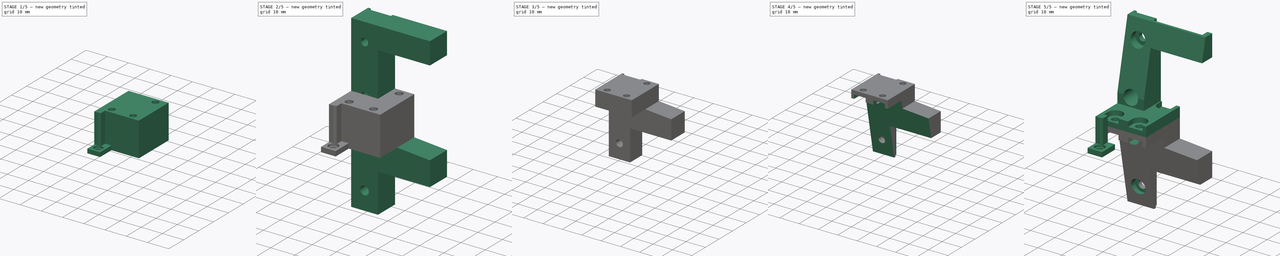
[diagram: build sequence overview — one tinted view per stage of 5, left to right]
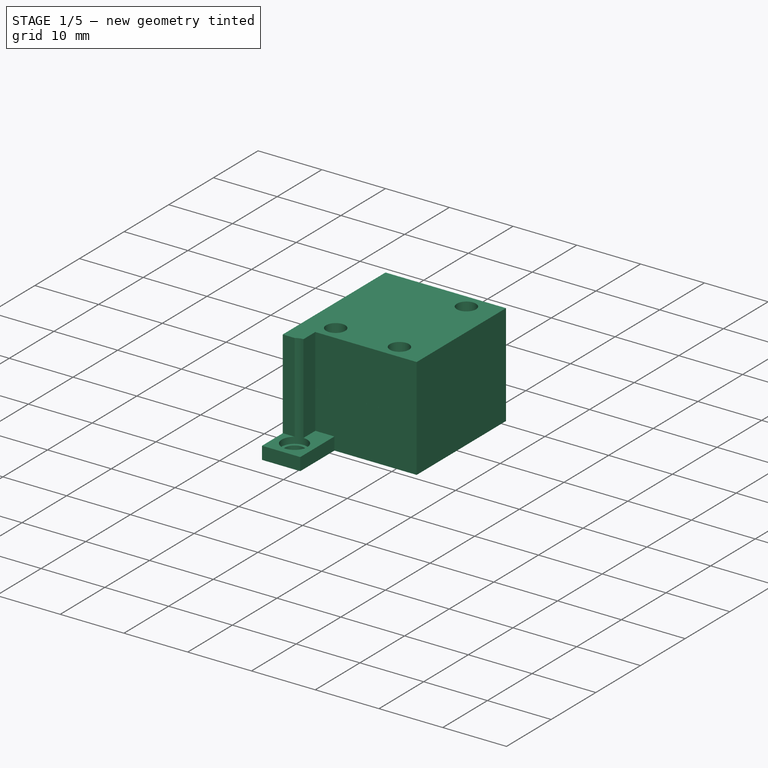
[diagram: stage 1 of 5 — iso view after this stage's code; geometry added in this stage tinted green]
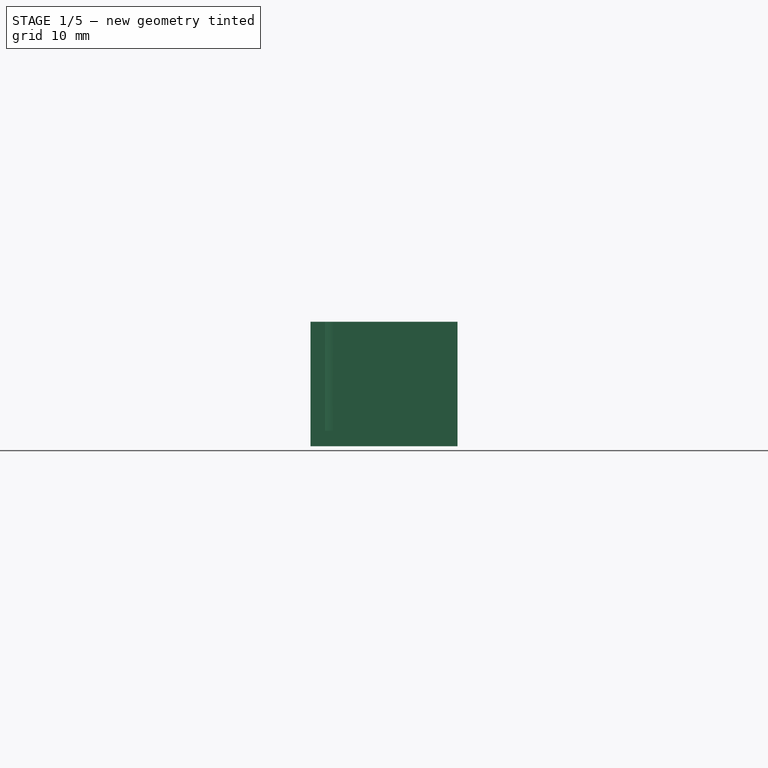
[diagram: stage 1 of 5 — front view after this stage's code; geometry added in this stage tinted green]
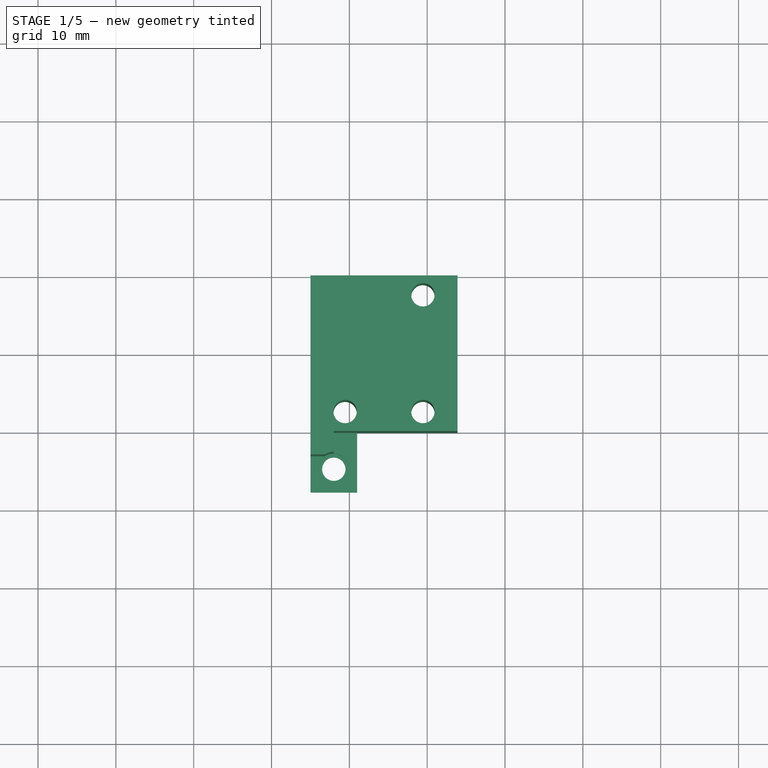
[diagram: stage 1 of 5 — top view after this stage's code; geometry added in this stage tinted green]
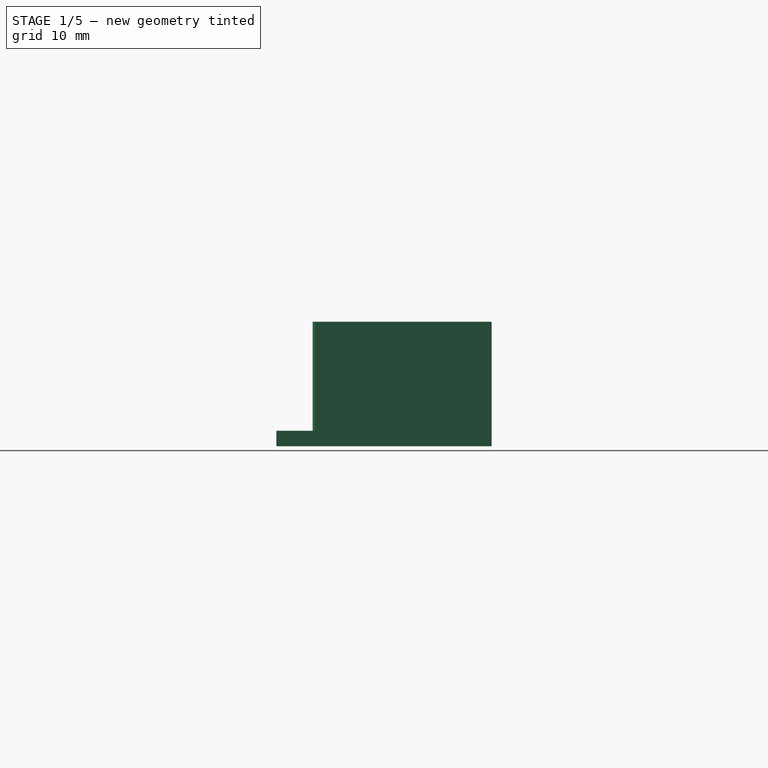
[diagram: stage 1 of 5 — right view after this stage's code; geometry added in this stage tinted green]
FCSTD DOCUMENT  (FreeCAD 0.21R33668 +26 (Git))
Label: NormalConnectorMagnet
License: All rights reserved
LicenseURL: http://en.wikipedia.org/wiki/All_rights_reserved
objects: Sketcher::SketchObject×26, PartDesign::Pocket×17, PartDesign::Pad×8, PartDesign::SubShapeBinder×2, PartDesign::Body×2
note: 80 computed .brp shape members not serialized (recipe doc carries the construction recipe); baked Part::Feature solids carry a one-line shape summary decoded from their .brp
EXTERNAL_REF file=MG/mgn9c_slide.FCStd obj=Body001
EXTERNAL_REF file=BaseMagnetoPot.FCStd obj=Sketch
EXTERNAL_REF file=MG/Datasheet.FCStd obj=Spreadsheet
EXTERNAL_REF file=BaseMagnetoPot.FCStd obj=Sketch001
EXTERNAL_REF file=MG/mgn9c_13.FCStd obj=Sketch

FEATURE [PartDesign::SubShapeBinder] Binder  label="Slide"
  BindCopyOnChange = 0
  BindMode = 0
  ClaimChildren = false
  Context = -> Body [Binder.]
  Fuse = false
  MakeFace = true
  OffsetFill = false
  OffsetIntersection = false
  OffsetJoinType = 0
  OffsetOpenResult = false
  PartialLoad = false
  Relative = true
  Support = -> [<external MG/mgn9c_slide.FCStd>#Body001]
  _Version = 2
FEATURE [Sketcher::SketchObject] Sketch
  ExternalGeometry = -> [Binder]
  FullyConstrained = true
  MapMode = 5
  Placement = pos=(0,0,8) rot=(0,0,1;0rad)
  Support = -> [Binder]
  expr: Constraints[5] = .Constraints.Rad
  expr: Constraints[6] = .Constraints.Rad
  sketch-geometry (7):
    g0: Circle CenterX=19.45 CenterY=17.5 CenterZ=0 NormalX=0 NormalY=0 NormalZ=1 AngleXU=0 Radius=1.5
    g1: Circle CenterX=9.45 CenterY=2.5 CenterZ=0 NormalX=0 NormalY=0 NormalZ=1 AngleXU=0 Radius=1.5
    g2: Circle CenterX=19.45 CenterY=2.5 CenterZ=0 NormalX=0 NormalY=0 NormalZ=1 AngleXU=0 Radius=1.5
    g3: LineSegment StartX=5 StartY=20 StartZ=0 EndX=23.9 EndY=20 EndZ=0
    g4: LineSegment StartX=23.9 StartY=20 StartZ=0 EndX=23.9 EndY=0 EndZ=0
    g5: LineSegment StartX=23.9 StartY=0 StartZ=0 EndX=5 EndY=0 EndZ=0
    g6: LineSegment StartX=5 StartY=0 StartZ=0 EndX=5 EndY=20 EndZ=0
  constraints (17):
    c: Coincident(g0,g-5)
    c: PointOnObject(g-4,g0)
    c: Coincident(g1,g-6)
    c: Coincident(g2,g-7)
    c: Diameter(g0) = 3  'Rad'
    c: Diameter(g1) = 3
    c: Diameter(g2) = 3
    c: Coincident(g3,g4)
    c: Coincident(g4,g5)
    c: Coincident(g5,g6)
    c: Coincident(g6,g3)
    c: Horizontal(g5)
    c: Vertical(g4)
    c: Vertical(g6)
    c: Coincident(g3,g-8)
    c: PointOnObject(g4,g-1)
    c: Coincident(g3,g-9)
FEATURE [PartDesign::Pad] Pad
  Direction = (0,0,1)
  Length = 8
  Length2 = 10
  Profile = -> Sketch
  ReferenceAxis = -> Sketch [N_Axis]
  Type = 0
FEATURE [Sketcher::SketchObject] Sketch001
  ExternalGeometry = -> [Pad,Binder]
  FullyConstrained = true
  MapMode = 5
  Placement = pos=(0,0,0) rot=(1,0,0;1.5708rad)
  Support = -> [Pad]
  sketch-geometry (4):
    g0: LineSegment StartX=5 StartY=16 StartZ=0 EndX=8 EndY=16 EndZ=0
    g1: LineSegment StartX=8 StartY=16 StartZ=0 EndX=8 EndY=0 EndZ=0
    g2: LineSegment StartX=8 StartY=0 StartZ=0 EndX=5 EndY=0 EndZ=0
    g3: LineSegment StartX=5 StartY=0 StartZ=0 EndX=5 EndY=16 EndZ=0
  constraints (11):
    c: Coincident(g0,g1)
    c: Coincident(g1,g2)
    c: Coincident(g2,g3)
    c: Coincident(g3,g0)
    c: Horizontal(g0)
    c: Horizontal(g2)
    c: Vertical(g1)
    c: Vertical(g3)
    c: Coincident(g0,g-4)
    c: PointOnObject(g2,g-5)
    c: DistanceX(g2,g1) = 3
FEATURE [PartDesign::Pad] Pad001
  BaseFeature = -> Pad
  Direction = (0,-1,2e-16)
  Length = 3
  Length2 = 10
  Profile = -> Sketch001
  ReferenceAxis = -> Sketch001 [N_Axis]
  Type = 0
FEATURE [Sketcher::SketchObject] Sketch002
  ExternalGeometry = -> [Binder,Pad001]
  FullyConstrained = true
  MapMode = 5
  Placement = pos=(0,0,0) rot=(1,0,0;3.14159rad)
  Support = -> [Pad001]
  sketch-geometry (12):
    g0: LineSegment StartX=5 StartY=0 StartZ=0 EndX=11 EndY=0 EndZ=0
    g1: LineSegment StartX=11 StartY=0 StartZ=0 EndX=11 EndY=7.65 EndZ=0
    g2: LineSegment StartX=11 StartY=7.65 StartZ=0 EndX=5 EndY=7.65 EndZ=0
    g3: LineSegment StartX=5 StartY=7.65 StartZ=0 EndX=5 EndY=0 EndZ=0
    g4: GeomPoint X=5 Y=14.8 Z=0
    g5: GeomPoint X=5 Y=-5.5 Z=0
    g6: GeomPoint X=5 Y=4.65 Z=0
    g7: Circle CenterX=8 CenterY=4.65 CenterZ=0 NormalX=0 NormalY=0 NormalZ=1 AngleXU=0 Radius=2
    g8: GeomPoint X=10 Y=4.65 Z=0
    g9: GeomPoint X=6 Y=4.65 Z=0
    g10: GeomPoint X=8 Y=6.65 Z=0
    g11: Circle CenterX=8 CenterY=4.65 CenterZ=0 NormalX=0 NormalY=0 NormalZ=1 AngleXU=0 Radius=1.5
  constraints (28):
    c: Coincident(g0,g1)
    c: Coincident(g1,g2)
    c: Coincident(g2,g3)
    c: Coincident(g3,g0)
    c: Horizontal(g0)
    c: Horizontal(g2)
    c: Vertical(g1)
    c: Vertical(g3)
    c: Coincident(g0,g-4)
    c: PointOnObject(g5,g-3)
    c: Vertical(g5,g4)
    c: Vertical(g4,g2)
    c: Symmetric(g4,g5,g6)
    c: DistanceY(g5,g4) = 20.3
    c: Horizontal(g7,g6)
    c: PointOnObject(g8,g7)
    c: PointOnObject(g9,g7)
    c: PointOnObject(g10,g7)
    c: Vertical(g10,g7)
    c: Horizontal(g9,g8)
    c: Horizontal(g7,g9)
    c: DistanceX(g8,g1) = 1
    c: DistanceY(g10,g1) = 1
    c: DistanceX(g6,g9) = 1
    c: Diameter(g7) = 4
    c: Coincident(g11,g7)
    c: Diameter(g11) = 3
    c: DistanceY(g0,g6) = 4.65  'SlideToMagnetCenter'
FEATURE [PartDesign::Pad] Pad002
  BaseFeature = -> Pad001
  Direction = (0,-2e-16,-1)
  Length = 2
  Length2 = 10
  Profile = -> Sketch002
  ReferenceAxis = -> Sketch002 [N_Axis]
  Reversed = true
  Type = 0
FEATURE [Sketcher::SketchObject] Sketch003
  ExternalGeometry = -> [Pad002]
  FullyConstrained = true
  MapMode = 5
  Placement = pos=(0,3.6e-15,16) rot=(0,0,1;0rad)
  Support = -> [Pad002]
  sketch-geometry (1):
    g0: Circle CenterX=8 CenterY=-4.65 CenterZ=0 NormalX=0 NormalY=0 NormalZ=1 AngleXU=0 Radius=2
  constraints (2):
    c: Coincident(g0,g-3)
    c: Diameter(g0) = 4  'MagnetDiameter'
FEATURE [PartDesign::Pocket] Pocket
  BaseFeature = -> Pad002
  Direction = (0,-2e-16,-1)
  Length = 15
  Length2 = 5
  Profile = -> Sketch003
  ReferenceAxis = -> Sketch003 [N_Axis]
  Type = 0
FEATURE [PartDesign::SubShapeBinder] Binder001  label="Slide001"
  BindCopyOnChange = 0
  BindMode = 0
  ClaimChildren = false
  Context = -> Body001 [Binder001.]
  Fuse = false
  MakeFace = true
  OffsetFill = false
  OffsetIntersection = false
  OffsetJoinType = 0
  OffsetOpenResult = false
  PartialLoad = false
  Relative = true
  Support = -> [<external MG/mgn9c_slide.FCStd>#Body001]
  _Version = 2
FEATURE [Sketcher::SketchObject] Sketch011
  ExternalGeometry = -> [Binder001]
  FullyConstrained = true
  MapMode = 5
  Placement = pos=(0,0,8) rot=(0,0,1;0rad)
  Support = -> [Binder001]
  expr: Constraints[13] = .Constraints.Rad
  expr: Constraints[14] = .Constraints.Rad
  expr: Constraints[15] = .Constraints.Rad
  sketch-geometry (7):
    g0: LineSegment StartX=5 StartY=0 StartZ=0 EndX=23.9 EndY=0 EndZ=0
    g1: LineSegment StartX=23.9 StartY=0 StartZ=0 EndX=23.9 EndY=20 EndZ=0
    g2: LineSegment StartX=23.9 StartY=20 StartZ=0 EndX=5 EndY=20 EndZ=0
    g3: LineSegment StartX=5 StartY=20 StartZ=0 EndX=5 EndY=0 EndZ=0
    g4: Circle CenterX=19.45 CenterY=17.5 CenterZ=0 NormalX=0 NormalY=0 NormalZ=1 AngleXU=0 Radius=1.5
    g5: Circle CenterX=19.45 CenterY=2.5 CenterZ=0 NormalX=0 NormalY=0 NormalZ=1 AngleXU=0 Radius=1.5
    g6: Circle CenterX=9.45 CenterY=2.5 CenterZ=0 NormalX=0 NormalY=0 NormalZ=1 AngleXU=0 Radius=1.5
  constraints (17):
    c: Coincident(g0,g1)
    c: Coincident(g1,g2)
    c: Coincident(g2,g3)
    c: Coincident(g3,g0)
    c: Horizontal(g0)
    c: Horizontal(g2)
    c: Vertical(g1)
    c: Vertical(g3)
    c: Coincident(g0,g-7)
    c: Coincident(g1,g-6)
    c: Coincident(g4,g-3)
    c: Coincident(g5,g-4)
    c: Diameter(g-5) = 3  'Rad'
    c: Diameter(g6) = 3
    c: Diameter(g5) = 3
    c: Diameter(g4) = 3
    c: Coincident(g6,g-5)
FEATURE [PartDesign::Pad] Pad005
  Direction = (0,0,1)
  Length = 8
  Length2 = 10
  Profile = -> Sketch011
  ReferenceAxis = -> Sketch011 [N_Axis]
  Reversed = true
  Type = 0
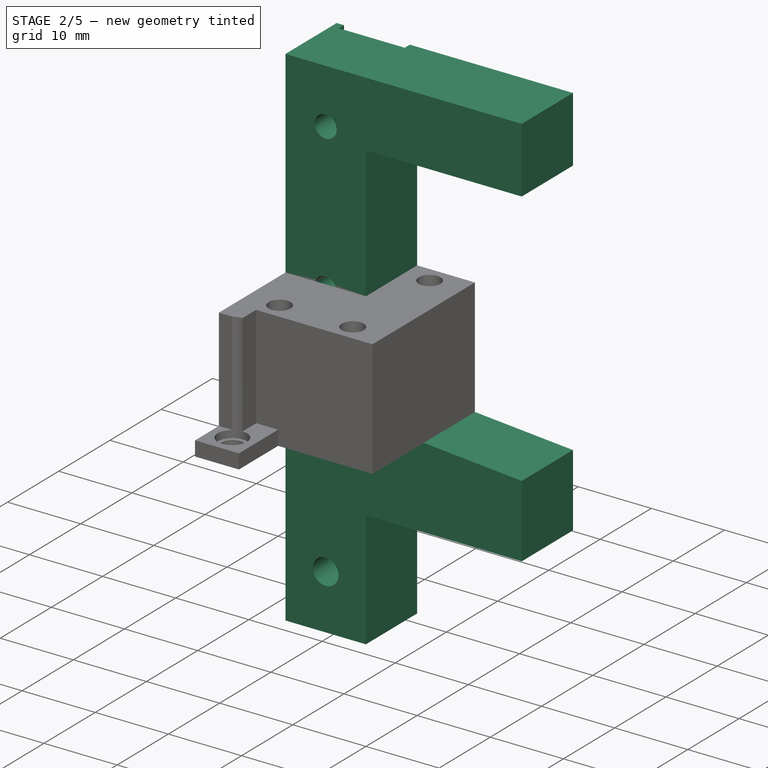
[diagram: stage 2 of 5 — iso view after this stage's code; geometry added in this stage tinted green]
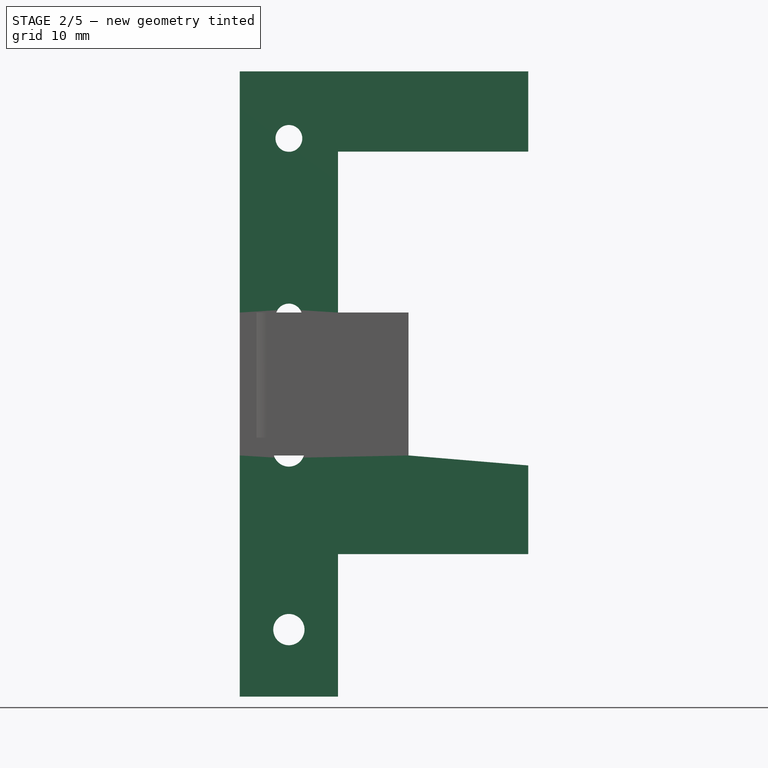
[diagram: stage 2 of 5 — front view after this stage's code; geometry added in this stage tinted green]
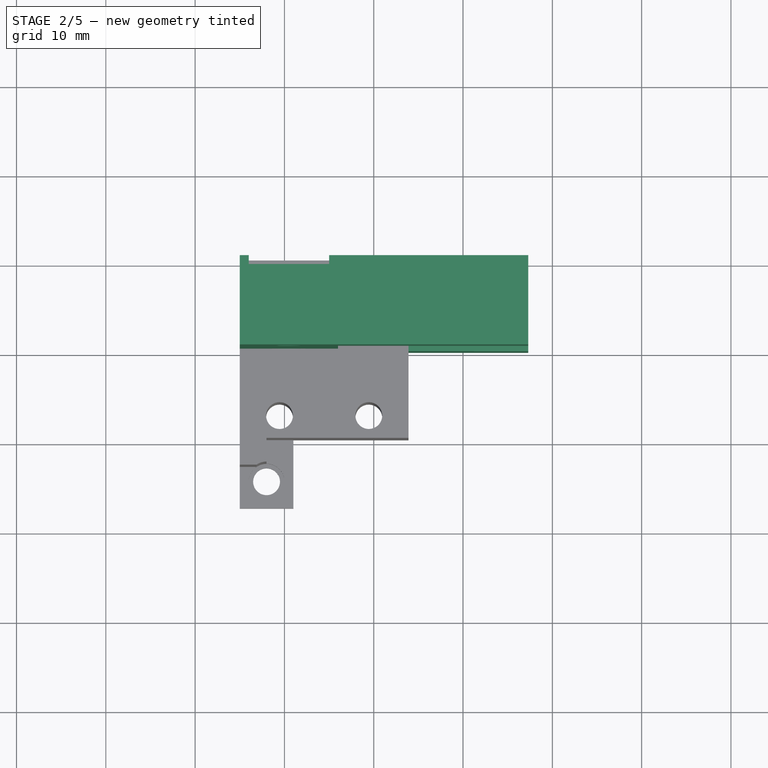
[diagram: stage 2 of 5 — top view after this stage's code; geometry added in this stage tinted green]
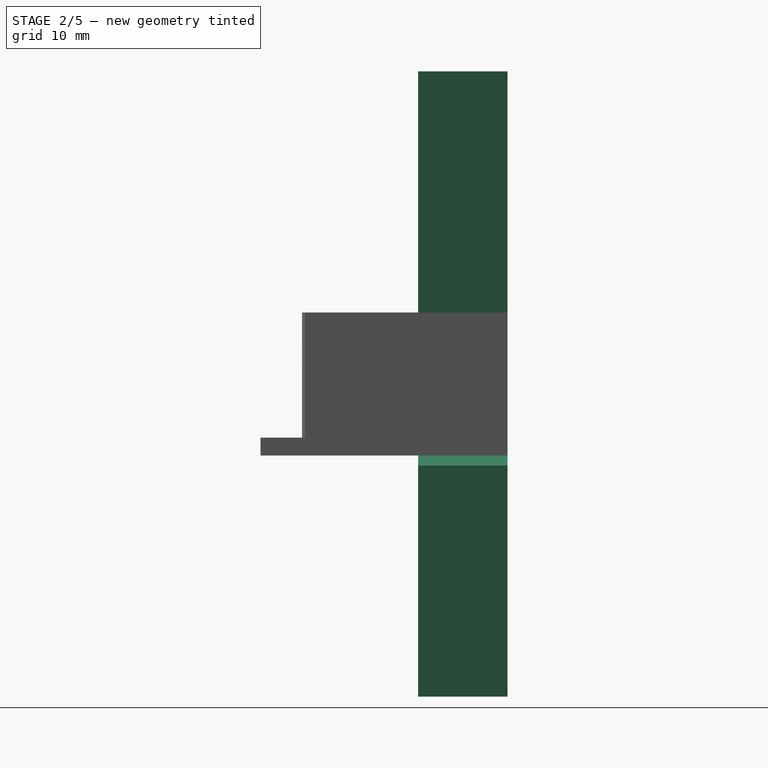
[diagram: stage 2 of 5 — right view after this stage's code; geometry added in this stage tinted green]
FEATURE [Sketcher::SketchObject] Sketch004
  ExternalGeometry = -> [Pocket]
  FullyConstrained = true
  MapMode = 5
  Placement = pos=(0,20,0) rot=(0,0.707107,0.707107;3.14159rad)
  Support = -> [Pocket]
  expr: Constraints[10] = <<Datasheet>>#<<mgn9c>>.Dim_P + 2 * <<Datasheet>>#<<mgn9c>>.Dim_E
  expr: Constraints[11] = <<BaseMagnetoPot>>#<<Sketch>>.Constraints.Base_End
  expr: Constraints[23] = <<Datasheet>>#<<mgn9c>>.Dim_Wr
  sketch-geometry (15):
    g0: LineSegment StartX=-5 StartY=16 StartZ=0 EndX=-16 EndY=16 EndZ=0
    g1: LineSegment StartX=-16 StartY=16 StartZ=0 EndX=-16 EndY=43 EndZ=0
    g2: LineSegment StartX=-16 StartY=43 StartZ=0 EndX=-5 EndY=43 EndZ=0
    g3: LineSegment StartX=-5 StartY=43 StartZ=0 EndX=-5 EndY=16 EndZ=0
    g4: LineSegment StartX=-35.3 StartY=36.02 StartZ=0 EndX=-16 EndY=36.02 EndZ=0
    g5: LineSegment StartX=-35.3 StartY=36.02 StartZ=0 EndX=-16 EndY=36.02 EndZ=0
    g6: LineSegment StartX=-16 StartY=36.02 StartZ=0 EndX=-16 EndY=43 EndZ=0
    g7: LineSegment StartX=-16 StartY=43 StartZ=0 EndX=-37.3 EndY=43 EndZ=0
    g8: GeomPoint X=-15 Y=16 Z=0
    g9: GeomPoint X=-6 Y=16 Z=0
    g10: GeomPoint X=-10.5 Y=16 Z=0
    g11: LineSegment StartX=-37.3 StartY=34.02 StartZ=0 EndX=-16 EndY=34.02 EndZ=0
    g12: LineSegment StartX=-16 StartY=34.02 StartZ=0 EndX=-16 EndY=16 EndZ=0
    g13: LineSegment StartX=-16 StartY=34.02 StartZ=0 EndX=-16 EndY=16 EndZ=0
    g14: LineSegment StartX=-37.3 StartY=43 StartZ=0 EndX=-37.3 EndY=34.02 EndZ=0
  constraints (37):
    c: Coincident(g0,g1)
    c: Coincident(g1,g2)
    c: Coincident(g2,g3)
    c: Coincident(g3,g0)
    c: Horizontal(g0)
    c: Horizontal(g2)
    c: Vertical(g1)
    c: Vertical(g3)
    c: Coincident(g0,g-4)
    c: Horizontal(g4)
    c: DistanceY(g-3,g2) = 35
    c: DistanceY(g-3,g4) = 28.02
    c: PointOnObject(g4,g1)
    c: Coincident(g5,g6)
    c: Coincident(g6,g7)
    c: Horizontal(g5)
    c: Horizontal(g7)
    c: Vertical(g6)
    c: Coincident(g5,g4)
    c: Coincident(g6,g2)
    c: PointOnObject(g8,g0)
    c: Symmetric(g0,g0,g10)
    c: Symmetric(g8,g9,g10)
    c: DistanceX(g8,g9) = 9
    c: DistanceX(g0,g8) = 1  'Strength'
    c: DistanceX(g5,g8) = 20.3
    c: Horizontal(g11)
    c: Coincident(g12,g11)
    c: Coincident(g12,g0)
    c: Coincident(g13,g11)
    c: PointOnObject(g11,g1)
    c: DistanceY(g11,g4) = 2
    c: Coincident(g14,g11)
    c: Vertical(g14)
    c: DistanceX(g11,g5) = 2
    c: Coincident(g7,g14)
    c: Coincident(g0,g13)
FEATURE [PartDesign::Pad] Pad003
  BaseFeature = -> Pocket
  Direction = (0,1,-2e-16)
  Length = 10
  Length2 = 10
  Profile = -> Sketch004
  ReferenceAxis = -> Sketch004 [N_Axis]
  Reversed = true
  Type = 0
  expr: Length = <<Datasheet>>#<<mgn9c>>.Dim_W / 2
FEATURE [Sketcher::SketchObject] Sketch005
  ExternalGeometry = -> [Pad003]
  FullyConstrained = true
  MapMode = 5
  Placement = pos=(4e-16,20,-5.3e-15) rot=(0,0.707107,0.707107;3.14159rad)
  Support = -> [Pad003]
  expr: Constraints[1] = <<Datasheet>>#<<mgn9c>>.Dim_P
  expr: Constraints[2] = <<Datasheet>>#<<mgn9c>>.Dim_E
  expr: Constraints[5] = 3
  sketch-geometry (3):
    g0: Circle CenterX=-10.5 CenterY=15.5 CenterZ=0 NormalX=0 NormalY=0 NormalZ=1 AngleXU=0 Radius=1.5
    g1: Circle CenterX=-10.5 CenterY=35.5 CenterZ=0 NormalX=0 NormalY=0 NormalZ=1 AngleXU=0 Radius=1.5
    g2: GeomPoint X=-10.5 Y=16 Z=0
  constraints (7):
    c: Vertical(g1,g0)
    c: DistanceY(g0,g1) = 20
    c: DistanceY(g-7,g0) = 7.5
    c: Symmetric(g-7,g-6,g2)
    c: Vertical(g2,g0)
    c: Diameter(g1) = 3
    c: Diameter(g0) = 3
FEATURE [PartDesign::Pocket] Pocket001
  BaseFeature = -> Pad003
  Direction = (0,-1,2e-16)
  Length = 10
  Length2 = 5
  Profile = -> Sketch005
  ReferenceAxis = -> Sketch005 [N_Axis]
  Type = 0
FEATURE [Sketcher::SketchObject] Sketch006
  ExternalGeometry = -> [Pocket001,Binder]
  FullyConstrained = true
  MapMode = 5
  Placement = pos=(4e-16,20,-5.3e-15) rot=(0,0.707107,0.707107;3.14159rad)
  Support = -> [Pocket001]
  expr: Constraints[11] = <<Datasheet>>#<<mgn9c>>.Dim_Wr
  sketch-geometry (5):
    g0: LineSegment StartX=-15 StartY=43 StartZ=0 EndX=-6 EndY=43 EndZ=0
    g1: LineSegment StartX=-6 StartY=43 StartZ=0 EndX=-6 EndY=8 EndZ=0
    g2: LineSegment StartX=-6 StartY=8 StartZ=0 EndX=-15 EndY=8 EndZ=0
    g3: LineSegment StartX=-15 StartY=8 StartZ=0 EndX=-15 EndY=43 EndZ=0
    g4: GeomPoint X=-10.5 Y=43 Z=0
  constraints (12):
    c: Coincident(g0,g1)
    c: Coincident(g1,g2)
    c: Coincident(g2,g3)
    c: Coincident(g3,g0)
    c: Horizontal(g0)
    c: Horizontal(g2)
    c: Vertical(g1)
    c: Vertical(g3)
    c: PointOnObject(g1,g-8)
    c: Symmetric(g-7,g-7,g4)
    c: Symmetric(g0,g0,g4)
    c: DistanceX(g0,g0) = 9
FEATURE [PartDesign::Pocket] Pocket002
  BaseFeature = -> Pocket001
  Direction = (0,-1,2e-16)
  Length = 1
  Length2 = 5
  Profile = -> Sketch006
  ReferenceAxis = -> Sketch006 [N_Axis]
  Type = 0
  expr: Length = <<Datasheet>>#<<mgn9c>>.Dim_H1 / 2
FEATURE [Sketcher::SketchObject] Sketch012
  ExternalGeometry = -> [Pad005]
  FullyConstrained = true
  MapMode = 5
  Placement = pos=(0,20,0) rot=(0,0.707107,0.707107;3.14159rad)
  Support = -> [Pad005]
  expr: Constraints[10] = <<Datasheet>>#<<mgn9c>>.Dim_Wr
  expr: Constraints[11] = <<Sketch004>>.Constraints.Strength
  expr: Constraints[21] = <<BaseMagnetoPot>>#<<Sketch>>.Constraints.PartWidth
  expr: Constraints[22] = <<BaseMagnetoPot>>#<<Sketch>>.Constraints.Rail_To_Part
  expr: Constraints[23] = <<BaseMagnetoPot>>#<<Sketch>>.Constraints.PartStartToActiveStart
  expr: Constraints[30] = <<Datasheet>>#<<mgn9c>>.Dim_P
  expr: Constraints[31] = <<Datasheet>>#<<mgn9c>>.Dim_E
  expr: Constraints[32] = <<Datasheet>>#<<mgn9c>>.Dim_d
  expr: Constraints[33] = <<Datasheet>>#<<mgn9c>>.Dim_E
  expr: Constraints[39] = <<Sketch004>>.Constraints.Strength
  expr: Constraints[44] = <<BaseMagnetoPot>>#<<Sketch001>>.Constraints.Strength
  expr: Constraints[45] = <<BaseMagnetoPot>>#<<Sketch001>>.Constraints.Strength
  expr: Constraints[54] = <<BaseMagnetoPot>>#<<Sketch>>.Constraints.Base_End
  expr: Constraints[9] = <<mgn9c_13>>#<<Sketch>>.Constraints.Rail_Length
  sketch-geometry (21):
    g0: LineSegment StartX=-15 StartY=8 StartZ=0 EndX=-6 EndY=8 EndZ=0
    g1: LineSegment StartX=-6 StartY=8 StartZ=0 EndX=-6 EndY=-247 EndZ=0
    g2: LineSegment StartX=-6 StartY=-247 StartZ=0 EndX=-15 EndY=-247 EndZ=0
    g3: LineSegment StartX=-15 StartY=-247 StartZ=0 EndX=-15 EndY=8 EndZ=0
    g4: LineSegment StartX=-35.3 StartY=-3.12 StartZ=0 EndX=-15 EndY=-3.12 EndZ=0
    g5: LineSegment StartX=-15 StartY=-3.12 StartZ=0 EndX=-15 EndY=-11.05 EndZ=0
    g6: LineSegment StartX=-15 StartY=-11.05 StartZ=0 EndX=-35.3 EndY=-11.05 EndZ=0
    g7: LineSegment StartX=-35.3 StartY=-11.05 StartZ=0 EndX=-35.3 EndY=-3.12 EndZ=0
    g8: LineSegment StartX=-23.9 StartY=0 StartZ=0 EndX=-5 EndY=0 EndZ=0
    g9: LineSegment StartX=-5 StartY=0 StartZ=0 EndX=-5 EndY=-27 EndZ=0
    g10: LineSegment StartX=-5 StartY=-27 StartZ=0 EndX=-16 EndY=-27 EndZ=0
    g11: Circle CenterX=-10.5 CenterY=-19.5 CenterZ=0 NormalX=0 NormalY=0 NormalZ=1 AngleXU=0 Radius=1.75
    g12: LineSegment StartX=-10.5 StartY=-19.5 StartZ=0 EndX=-10.5 EndY=0.5 EndZ=0
    g13: LineSegment StartX=-35.3 StartY=-11.05 StartZ=0 EndX=-16 EndY=-11.05 EndZ=0
    g14: LineSegment StartX=-16 StartY=-11.05 StartZ=0 EndX=-16 EndY=-27 EndZ=0
    g15: LineSegment StartX=-23.9 StartY=0 StartZ=0 EndX=-37.3 EndY=-1.12 EndZ=0
    g16: LineSegment StartX=-37.3 StartY=-1.12 StartZ=0 EndX=-37.3 EndY=-11.05 EndZ=0
    g17: GeomPoint X=-25.15 Y=-11.05 Z=0
    g18: LineSegment StartX=-37.3 StartY=-11.05 StartZ=0 EndX=-35.3 EndY=-11.05 EndZ=0
    g19: LineSegment StartX=-35.3 StartY=-11.05 StartZ=0 EndX=-16 EndY=-11.05 EndZ=0
    g20: GeomPoint X=-15 Y=-218.98 Z=0
  constraints (56):
    c: Coincident(g0,g1)
    c: Coincident(g1,g2)
    c: Coincident(g2,g3)
    c: Coincident(g3,g0)
    c: Horizontal(g0)
    c: Horizontal(g2)
    c: Vertical(g1)
    c: Vertical(g3)
    c: Horizontal(g0,g-3)
    c: DistanceY(g1,g1) = 255
    c: DistanceX(g0,g0) = 9
    c: DistanceX(g0,g-3) = 1
    c: Coincident(g4,g5)
    c: Coincident(g5,g6)
    c: Coincident(g6,g7)
    c: Coincident(g7,g4)
    c: Horizontal(g4)
    c: Horizontal(g6)
    c: Vertical(g5)
    c: Vertical(g7)
    c: PointOnObject(g5,g3)
    c: DistanceX(g4,g4) = 20.3
    c: DistanceY(g4,g0) = 11.12
    c: DistanceY(g7,g7) = 7.93
    c: Coincident(g8,g-4)
    c: Coincident(g9,g8)
    c: Vertical(g9)
    c: Coincident(g10,g9)
    c: Horizontal(g10)
    c: Coincident(g11,g12)
    c: DistanceY(g12,g12) = 20
    c: DistanceY(g9,g11) = 7.5
    c: Diameter(g11) = 3.5
    c: DistanceY(g12,g-3) = 7.5
    c: Coincident(g13,g7)
    c: PointOnObject(g13,g6)
    c: Coincident(g14,g13)
    c: Vertical(g14)
    c: Coincident(g10,g14)
    c: DistanceX(g13,g5) = 1
    c: Symmetric(g0,g0,g12)
    c: Coincident(g8,g15)
    c: Coincident(g15,g16)
    c: Vertical(g16)
    c: DistanceX(g16,g7) = 2
    c: DistanceY(g7,g15) = 2
    c: Coincident(g8,g-4)
    c: Symmetric(g7,g5,g17)
    c: Horizontal(g16,g6)
    c: Coincident(g18,g16)
    c: Coincident(g18,g6)
    c: Coincident(g19,g18)
    c: Coincident(g19,g14)
    c: PointOnObject(g20,g3)
    c: DistanceY(g2,g20) = 28.02
    c: DistanceY(g20,g4) = 215.86
FEATURE [PartDesign::Pad] Pad006
  BaseFeature = -> Pad005
  Direction = (0,1,-2e-16)
  Length = 10
  Length2 = 10
  Profile = -> Sketch012
  ReferenceAxis = -> Sketch012 [N_Axis]
  Reversed = true
  Type = 0
  expr: Length = <<Datasheet>>#<<mgn9c>>.Dim_W / 2
FEATURE [Sketcher::SketchObject] Sketch015  label="Measurements"
  ExternalGeometry = -> [Pocket005]
  FullyConstrained = true
  MapMode = 5
  Support = -> [XY_Plane]
  constraints (3):
    c: DistanceY(g-6,g-4) = 2.5  'SlideStopHeight'
    c: DistanceY(g-3,g-6) = 1  'RailGuideHeight'
    c: DistanceY(g-5,g-3) = 2  'MagnetoPotHeightIndent'
FEATURE [Sketcher::SketchObject] Sketch017
  ExternalGeometry = -> [Pad006]
  FullyConstrained = true
  MapMode = 5
  Placement = pos=(2e-16,20,-5.2e-15) rot=(0,0.707107,0.707107;3.14159rad)
  Support = -> [Pad006]
  expr: Constraints[1] = <<Datasheet>>#<<mgn9c>>.Dim_d
  expr: Constraints[2] = <<Datasheet>>#<<mgn9c>>.Dim_P
  sketch-geometry (1):
    g0: Circle CenterX=-10.5 CenterY=0.5 CenterZ=0 NormalX=0 NormalY=0 NormalZ=1 AngleXU=0 Radius=1.75
  constraints (3):
    c: Vertical(g-3,g0)
    c: Diameter(g0) = 3.5
    c: DistanceY(g-3,g0) = 20
FEATURE [PartDesign::Pocket] Pocket009
  BaseFeature = -> Pad006
  Direction = (0,-1,2e-16)
  Length = 10
  Length2 = 5
  Profile = -> Sketch017
  ReferenceAxis = -> Sketch017 [N_Axis]
  Type = 0
  expr: Length = <<Datasheet>>#<<mgn9c>>.Dim_W / 2
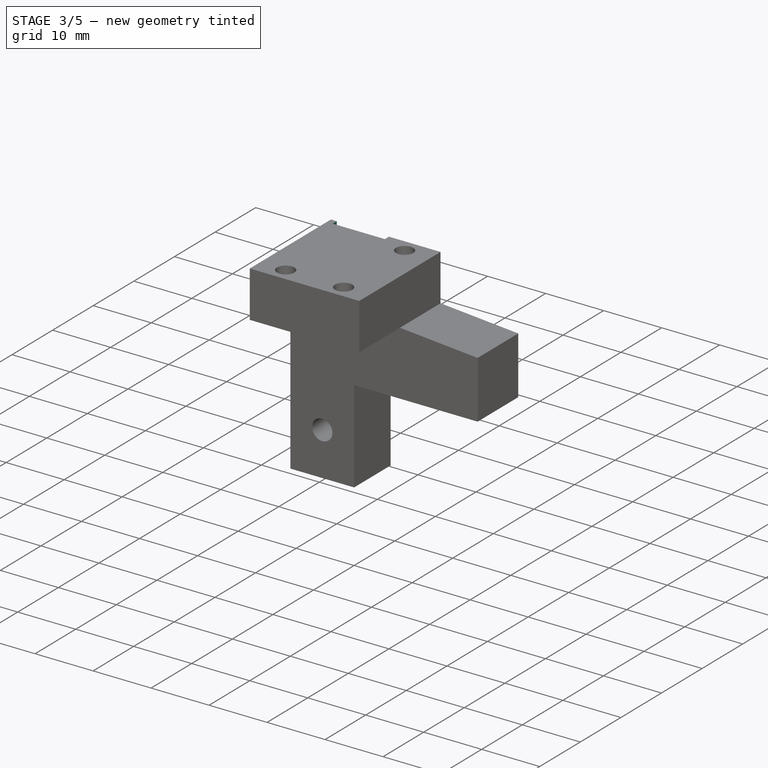
[diagram: stage 3 of 5 — iso view after this stage's code; geometry added in this stage tinted green]
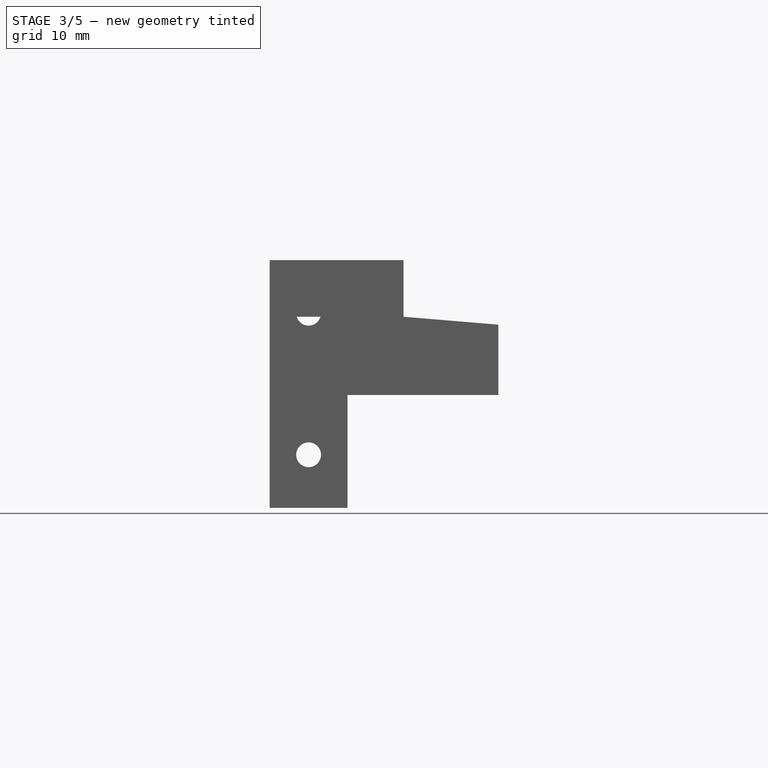
[diagram: stage 3 of 5 — front view after this stage's code; geometry added in this stage tinted green]
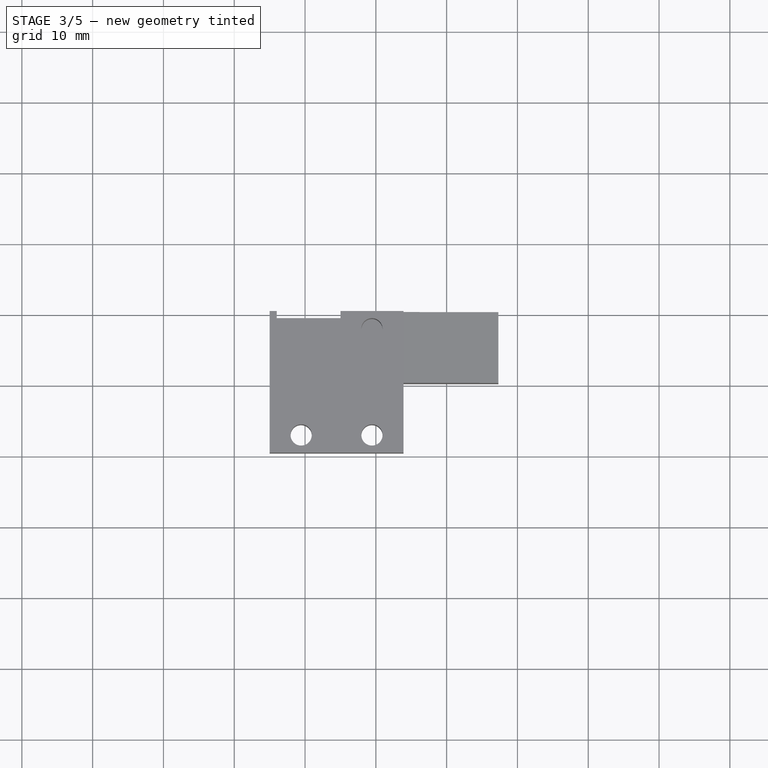
[diagram: stage 3 of 5 — top view after this stage's code; geometry added in this stage tinted green]
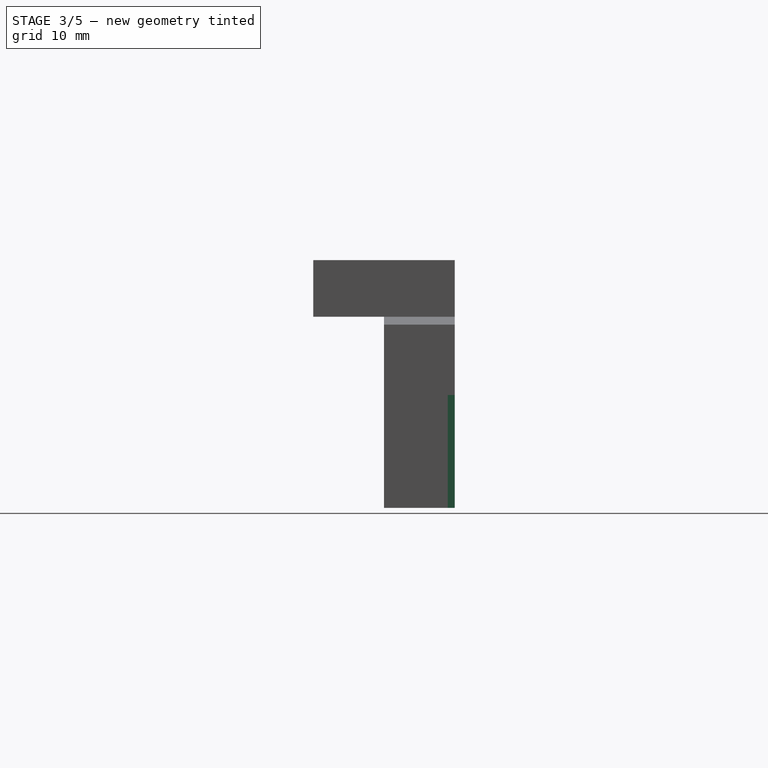
[diagram: stage 3 of 5 — right view after this stage's code; geometry added in this stage tinted green]
FEATURE [Sketcher::SketchObject] Sketch007
  ExternalGeometry = -> [Pocket002]
  FullyConstrained = true
  MapMode = 5
  Placement = pos=(4e-16,20,-5.3e-15) rot=(0,0.707107,0.707107;3.14159rad)
  Support = -> [Pocket002]
  sketch-geometry (10):
    g0: LineSegment StartX=-15 StartY=43 StartZ=0 EndX=-35.3 EndY=43 EndZ=0
    g1: LineSegment StartX=-35.3 StartY=43 StartZ=0 EndX=-35.3 EndY=36.02 EndZ=0
    g2: LineSegment StartX=-35.3 StartY=36.02 StartZ=0 EndX=-15 EndY=36.02 EndZ=0
    g3: LineSegment StartX=-15 StartY=36.02 StartZ=0 EndX=-15 EndY=43 EndZ=0
    g4: LineSegment StartX=-20.07 StartY=36.02 StartZ=0 EndX=-20.07 EndY=34.02 EndZ=0
    g5: LineSegment StartX=-20.07 StartY=34.02 StartZ=0 EndX=-30.23 EndY=34.02 EndZ=0
    g6: LineSegment StartX=-30.23 StartY=34.02 StartZ=0 EndX=-30.23 EndY=36.02 EndZ=0
    g7: GeomPoint X=-25.15 Y=36.02 Z=0
    g8: LineSegment StartX=-35.3 StartY=36.02 StartZ=0 EndX=-30.23 EndY=36.02 EndZ=0
    g9: LineSegment StartX=-20.07 StartY=36.02 StartZ=0 EndX=-15 EndY=36.02 EndZ=0
  constraints (25):
    c: Coincident(g0,g1)
    c: Coincident(g1,g2)
    c: Coincident(g2,g3)
    c: Coincident(g3,g0)
    c: Horizontal(g0)
    c: Horizontal(g2)
    c: Vertical(g1)
    c: Vertical(g3)
    c: Coincident(g0,g-4)
    c: DistanceY(g-6,g1) = 2
    c: DistanceX(g-6,g1) = 2
    c: Coincident(g4,g5)
    c: Coincident(g5,g6)
    c: Horizontal(g5)
    c: Vertical(g4)
    c: Vertical(g6)
    c: PointOnObject(g6,g2)
    c: PointOnObject(g4,g-5)
    c: Symmetric(g1,g3,g7)
    c: Symmetric(g6,g4,g7)
    c: DistanceX(g6,g4) = 10.16
    c: Coincident(g8,g1)
    c: Coincident(g8,g6)
    c: Coincident(g9,g4)
    c: Coincident(g9,g3)
FEATURE [PartDesign::Pocket] Pocket003
  BaseFeature = -> Pocket002
  Direction = (0,-1,2e-16)
  Length = 3
  Length2 = 5
  Profile = -> Sketch007
  ReferenceAxis = -> Sketch007 [N_Axis]
  Type = 0
FEATURE [Sketcher::SketchObject] Sketch008
  ExternalGeometry = -> [Pocket003]
  FullyConstrained = true
  MapMode = 5
  Placement = pos=(4e-16,20,-5.3e-15) rot=(0,0.707107,0.707107;3.14159rad)
  Support = -> [Pocket003]
  expr: Constraints[10] = <<BaseMagnetoPot>>#<<Sketch>>.Constraints.EndStopDistance
  sketch-geometry (4):
    g0: LineSegment StartX=-5 StartY=16 StartZ=0 EndX=-6 EndY=16 EndZ=0
    g1: LineSegment StartX=-6 StartY=16 StartZ=0 EndX=-6 EndY=22.05 EndZ=0
    g2: LineSegment StartX=-6 StartY=22.05 StartZ=0 EndX=-5 EndY=22.05 EndZ=0
    g3: LineSegment StartX=-5 StartY=22.05 StartZ=0 EndX=-5 EndY=16 EndZ=0
  constraints (12):
    c: Coincident(g0,g1)
    c: Coincident(g1,g2)
    c: Coincident(g2,g3)
    c: Coincident(g3,g0)
    c: Horizontal(g0)
    c: Horizontal(g2)
    c: Vertical(g1)
    c: Vertical(g3)
    c: Coincident(g0,g-5)
    c: PointOnObject(g1,g-4)
    c: DistanceY(g-3,g2) = 14.05
    c: DistanceY(g3,g3) = 6.05  'StopperLength'
FEATURE [PartDesign::Pad] Pad004
  BaseFeature = -> Pocket003
  Direction = (0,1,-2e-16)
  Length = 2.5
  Length2 = 10
  Profile = -> Sketch008
  ReferenceAxis = -> Sketch008 [N_Axis]
  Type = 0
FEATURE [Sketcher::SketchObject] Sketch009
  ExternalGeometry = -> [Pad004]
  FullyConstrained = true
  MapMode = 5
  Placement = pos=(5,-1e-16,0) rot=(-0.57735,0.57735,0.57735;4.18879rad)
  Support = -> [Pad004]
  sketch-geometry (3):
    g0: LineSegment StartX=-22.5 StartY=20.05 StartZ=0 EndX=-20 EndY=16 EndZ=0
    g1: LineSegment StartX=-20 StartY=16 StartZ=0 EndX=-22.5 EndY=16 EndZ=0
    g2: LineSegment StartX=-22.5 StartY=16 StartZ=0 EndX=-22.5 EndY=20.05 EndZ=0
  constraints (7):
    c: PointOnObject(g0,g-5)
    c: Coincident(g0,g-4)
    c: Coincident(g1,g0)
    c: Coincident(g1,g-5)
    c: Coincident(g2,g1)
    c: Coincident(g2,g0)
    c: DistanceY(g0,g-5) = 2  'StopperTopLength'
FEATURE [PartDesign::Pocket] Pocket004
  BaseFeature = -> Pad004
  Direction = (1,0,0)
  Length = 5
  Length2 = 5
  Profile = -> Sketch009
  ReferenceAxis = -> Sketch009 [N_Axis]
  Type = 1
FEATURE [Sketcher::SketchObject] Sketch010
  ExternalGeometry = -> [Pocket004]
  FullyConstrained = true
  MapMode = 5
  Placement = pos=(5,0,0) rot=(0.57735,-0.57735,-0.57735;2.0944rad)
  Support = -> [Pocket004]
  sketch-geometry (3):
    g0: LineSegment StartX=-10 StartY=16 StartZ=0 EndX=-16 EndY=43 EndZ=0
    g1: LineSegment StartX=-16 StartY=43 StartZ=0 EndX=-10 EndY=43 EndZ=0
    g2: LineSegment StartX=-10 StartY=43 StartZ=0 EndX=-10 EndY=16 EndZ=0
  constraints (7):
    c: Coincident(g0,g-3)
    c: PointOnObject(g0,g-4)
    c: Coincident(g1,g-4)
    c: Coincident(g2,g0)
    c: Coincident(g0,g1)
    c: DistanceX(g-4,g0) = 4
    c: Coincident(g1,g2)
FEATURE [PartDesign::Pocket] Pocket005
  BaseFeature = -> Pocket004
  Direction = (1,0,0)
  Length = 5
  Length2 = 5
  Profile = -> Sketch010
  ReferenceAxis = -> Sketch010 [N_Axis]
  Type = 1
FEATURE [Sketcher::SketchObject] Sketch014
  ExternalGeometry = -> [Pocket009]
  FullyConstrained = true
  MapMode = 5
  Placement = pos=(2e-16,20,-5.2e-15) rot=(0,0.707107,0.707107;3.14159rad)
  Support = -> [Pocket009]
  expr: Constraints[28] = <<Datasheet>>#<<mgn9c>>.Dim_Wr
  expr: Constraints[8] = <<BaseMagnetoPot>>#<<Sketch>>.Constraints.PartWidth
  expr: Constraints[9] = <<BaseMagnetoPot>>#<<Sketch>>.Constraints.PartStartToActiveStart
  sketch-geometry (13):
    g0: LineSegment StartX=-35.3 StartY=-11.05 StartZ=0 EndX=-15 EndY=-11.05 EndZ=0
    g1: LineSegment StartX=-15 StartY=-11.05 StartZ=0 EndX=-15 EndY=-3.12 EndZ=0
    g2: LineSegment StartX=-15 StartY=-3.12 StartZ=0 EndX=-35.3 EndY=-3.12 EndZ=0
    g3: LineSegment StartX=-35.3 StartY=-3.12 StartZ=0 EndX=-35.3 EndY=-11.05 EndZ=0
    g4: LineSegment StartX=-15 StartY=-3.12 StartZ=0 EndX=-6 EndY=-3.12 EndZ=0
    g5: LineSegment StartX=-6 StartY=-3.12 StartZ=0 EndX=-6 EndY=-27 EndZ=0
    g6: LineSegment StartX=-6 StartY=-27 StartZ=0 EndX=-16 EndY=-27 EndZ=0
    g7: LineSegment StartX=-16 StartY=-11.05 StartZ=0 EndX=-16 EndY=-27 EndZ=0
    g8: LineSegment StartX=-35.3 StartY=-11.05 StartZ=0 EndX=-16 EndY=-11.05 EndZ=0
    g9: LineSegment StartX=-6 StartY=-3.12 StartZ=0 EndX=-6 EndY=8 EndZ=0
    g10: LineSegment StartX=-6 StartY=8 StartZ=0 EndX=-15 EndY=8 EndZ=0
    g11: LineSegment StartX=-15 StartY=8 StartZ=0 EndX=-15 EndY=-3.12 EndZ=0
    g12: LineSegment StartX=-10.5 StartY=0.5 StartZ=0 EndX=-10.5 EndY=-3.12 EndZ=0
  constraints (35):
    c: Coincident(g0,g1)
    c: Coincident(g1,g2)
    c: Coincident(g2,g3)
    c: Coincident(g3,g0)
    c: Horizontal(g0)
    c: Horizontal(g2)
    c: Vertical(g1)
    c: Vertical(g3)
    c: DistanceX(g2,g2) = 20.3
    c: DistanceY(g1,g1) = 7.93
    c: Coincident(g4,g2)
    c: Horizontal(g4)
    c: Coincident(g5,g4)
    c: Vertical(g5)
    c: Coincident(g6,g5)
    c: Horizontal(g6)
    c: Coincident(g7,g6)
    c: Coincident(g8,g3)
    c: Coincident(g8,g7)
    c: Coincident(g9,g10)
    c: Coincident(g10,g11)
    c: Horizontal(g10)
    c: Vertical(g9)
    c: Vertical(g11)
    c: Coincident(g4,g9)
    c: Coincident(g1,g11)
    c: PointOnObject(g10,g-4)
    c: PointOnObject(g7,g0)
    c: DistanceX(g10,g10) = 9
    c: Coincident(g12,g-6)
    c: PointOnObject(g12,g4)
    c: Symmetric(g10,g9,g12)
    c: Coincident(g6,g-7)
    c: Coincident(g-5,g7)
    c: DistanceX(g9,g-4) = 1  'SlideGuideWidth'
FEATURE [PartDesign::Pocket] Pocket010
  BaseFeature = -> Pocket009
  Direction = (0,-1,2e-16)
  Length = 1
  Length2 = 5
  Profile = -> Sketch014
  ReferenceAxis = -> Sketch014 [N_Axis]
  Type = 0
  expr: Length = <<Measurements>>.Constraints.RailGuideHeight
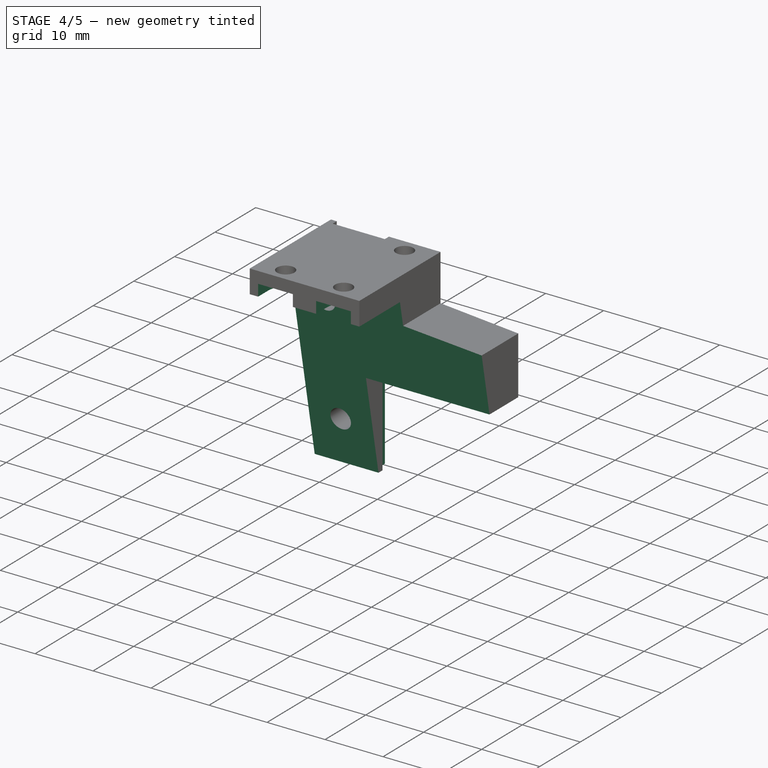
[diagram: stage 4 of 5 — iso view after this stage's code; geometry added in this stage tinted green]
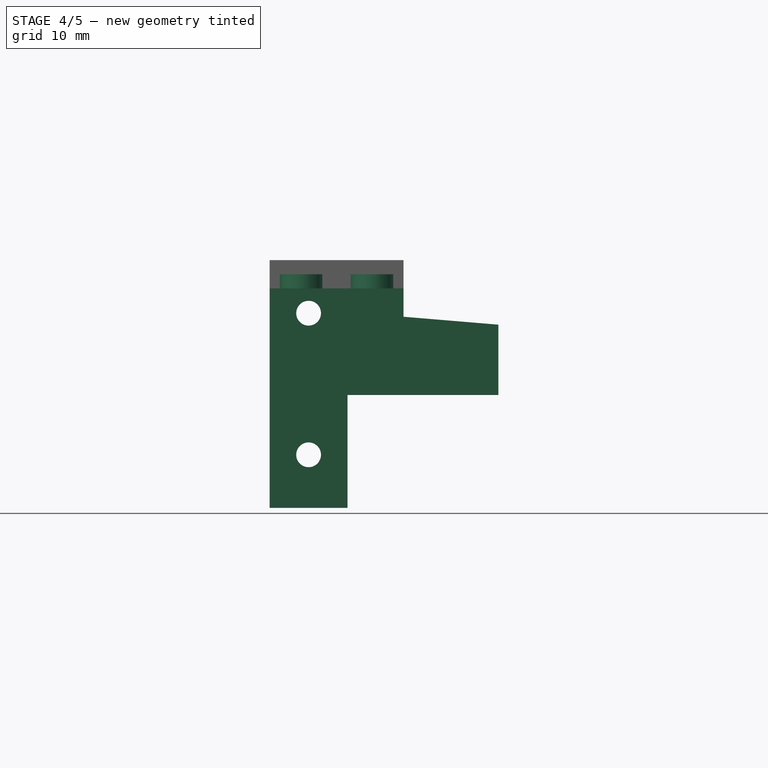
[diagram: stage 4 of 5 — front view after this stage's code; geometry added in this stage tinted green]
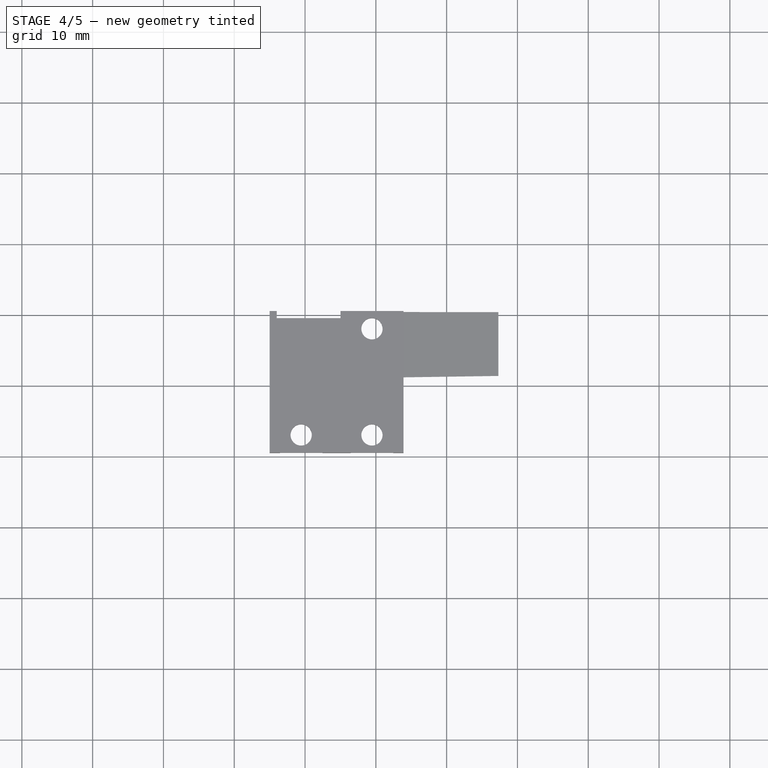
[diagram: stage 4 of 5 — top view after this stage's code; geometry added in this stage tinted green]
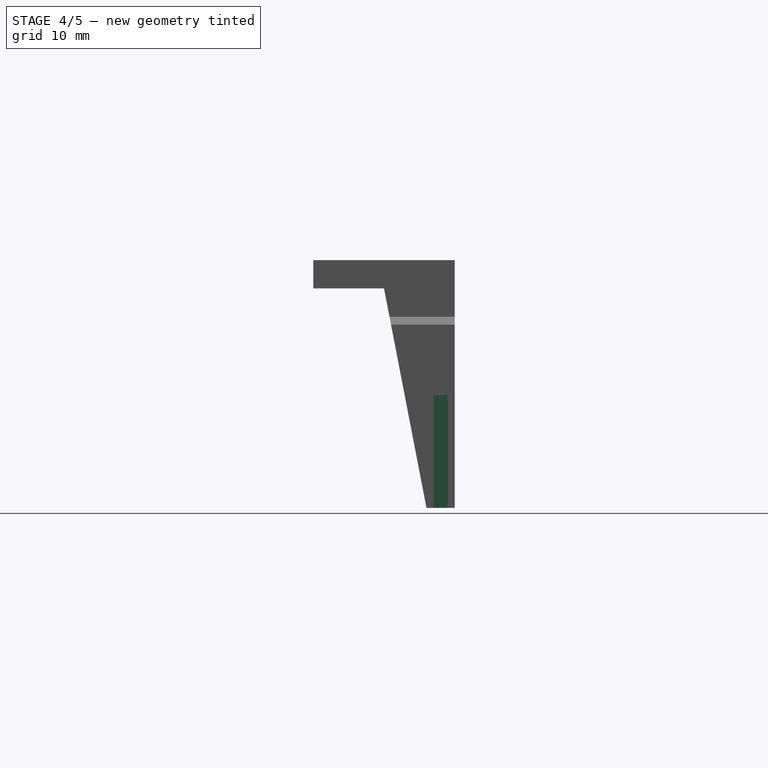
[diagram: stage 4 of 5 — right view after this stage's code; geometry added in this stage tinted green]
FEATURE [Sketcher::SketchObject] Sketch016
  ExternalGeometry = -> [Pocket010]
  FullyConstrained = true
  MapMode = 5
  Placement = pos=(-2e-16,19,-4.5e-15) rot=(0,0.707107,0.707107;3.14159rad)
  Support = -> [Pocket010]
  sketch-geometry (4):
    g0: LineSegment StartX=-35.3 StartY=-27 StartZ=0 EndX=-15 EndY=-27 EndZ=0
    g1: LineSegment StartX=-15 StartY=-27 StartZ=0 EndX=-15 EndY=-3.12 EndZ=0
    g2: LineSegment StartX=-15 StartY=-3.12 StartZ=0 EndX=-35.3 EndY=-3.12 EndZ=0
    g3: LineSegment StartX=-35.3 StartY=-3.12 StartZ=0 EndX=-35.3 EndY=-27 EndZ=0
  constraints (11):
    c: Coincident(g0,g1)
    c: Coincident(g1,g2)
    c: Coincident(g2,g3)
    c: Coincident(g3,g0)
    c: Horizontal(g0)
    c: Horizontal(g2)
    c: Vertical(g1)
    c: Vertical(g3)
    c: Coincident(g1,g-5)
    c: PointOnObject(g0,g-3)
    c: PointOnObject(g-4,g3)
FEATURE [PartDesign::Pocket] Pocket011
  BaseFeature = -> Pocket010
  Direction = (0,-1,2e-16)
  Length = 2
  Length2 = 5
  Profile = -> Sketch016
  ReferenceAxis = -> Sketch016 [N_Axis]
  Type = 0
  expr: Length = <<Measurements>>.Constraints.MagnetoPotHeightIndent
FEATURE [PartDesign::Pocket] Pocket012
  BaseFeature = -> Pocket011
  Direction = (0,0,-1)
  Length = 5
  Length2 = 5
  Profile = -> Pocket011 [Edge20]
  Type = 1
FEATURE [Sketcher::SketchObject] Sketch018
  ExternalGeometry = -> [Pocket012]
  FullyConstrained = true
  MapMode = 5
  Placement = pos=(-1e-15,-2.5e-15,-11.05) rot=(1,0,0;3.14159rad)
  Support = -> [Pocket012]
  expr: Constraints[1] = <<Datasheet>>#<<mgn9c>>.Dim_D
  expr: Constraints[3] = <<Datasheet>>#<<mgn9c>>.Dim_D
  expr: Constraints[5] = <<Datasheet>>#<<mgn9c>>.Dim_D
  sketch-geometry (18):
    g0: Circle CenterX=19.45 CenterY=-17.5 CenterZ=0 NormalX=0 NormalY=0 NormalZ=1 AngleXU=0 Radius=3
    g1: Circle CenterX=9.45 CenterY=-2.5 CenterZ=0 NormalX=0 NormalY=0 NormalZ=1 AngleXU=0 Radius=3
    g2: Circle CenterX=19.45 CenterY=-2.5 CenterZ=0 NormalX=0 NormalY=0 NormalZ=1 AngleXU=0 Radius=3
    g3: ArcOfCircle CenterX=19.45 CenterY=-17.5 CenterZ=0 NormalX=0 NormalY=0 NormalZ=1 AngleXU=0 Radius=3 StartAngle=5.24197e-06 EndAngle=3.14159
    g4: LineSegment StartX=16.45 StartY=-17.5 StartZ=0 EndX=22.45 EndY=-17.5 EndZ=0
    g5: LineSegment StartX=22.45 StartY=-17.5 StartZ=0 EndX=22.45 EndY=-20 EndZ=0
    g6: LineSegment StartX=22.45 StartY=-20 StartZ=0 EndX=16.45 EndY=-20 EndZ=0
    g7: LineSegment StartX=16.45 StartY=-20 StartZ=0 EndX=16.45 EndY=-17.5 EndZ=0
    g8: ArcOfCircle CenterX=19.45 CenterY=-2.5 CenterZ=0 NormalX=0 NormalY=0 NormalZ=1 AngleXU=0 Radius=3 StartAngle=3.1416 EndAngle=6.28318
    g9: ArcOfCircle CenterX=9.45 CenterY=-2.5 CenterZ=0 NormalX=0 NormalY=0 NormalZ=1 AngleXU=0 Radius=3 StartAngle=3.14159 EndAngle=6.28319
    g10: LineSegment StartX=6.45 StartY=-2.5 StartZ=0 EndX=12.45 EndY=-2.5 EndZ=0
    g11: LineSegment StartX=12.45 StartY=-2.5 StartZ=0 EndX=12.45 EndY=0 EndZ=0
    g12: LineSegment StartX=12.45 StartY=0 StartZ=0 EndX=6.45 EndY=0 EndZ=0
    g13: LineSegment StartX=6.45 StartY=0 StartZ=0 EndX=6.45 EndY=-2.5 EndZ=0
    g14: LineSegment StartX=16.45 StartY=-2.50002 StartZ=0 EndX=22.45 EndY=-2.50002 EndZ=0
    g15: LineSegment StartX=22.45 StartY=-2.50002 StartZ=0 EndX=22.45 EndY=0 EndZ=0
    g16: LineSegment StartX=22.45 StartY=0 StartZ=0 EndX=16.45 EndY=0 EndZ=0
    g17: LineSegment StartX=16.45 StartY=0 StartZ=0 EndX=16.45 EndY=-2.50002 EndZ=0
  constraints (48):
    c: Coincident(g0,g-3)
    c: Diameter(g0) = 6
    c: Coincident(g1,g-6)
    c: Diameter(g1) = 6
    c: Coincident(g2,g-5)
    c: Diameter(g2) = 6
    c: PointOnObject(g3,g0)
    c: Coincident(g0,g3)
    c: Coincident(g4,g5)
    c: Coincident(g5,g6)
    c: Coincident(g6,g7)
    c: Coincident(g7,g4)
    c: Horizontal(g4)
    c: Horizontal(g6)
    c: Vertical(g5)
    c: Vertical(g7)
    c: Coincident(g4,g3)
    c: Coincident(g3,g4)
    c: Tangent(g3,g5)
    c: PointOnObject(g5,g-7)
    c: Coincident(g8,g2)
    c: PointOnObject(g8,g2)
    c: Coincident(g9,g1)
    c: Coincident(g10,g11)
    c: Coincident(g11,g12)
    c: Coincident(g12,g13)
    c: Coincident(g13,g10)
    c: Horizontal(g10)
    c: Horizontal(g12)
    c: Vertical(g11)
    c: Vertical(g13)
    c: PointOnObject(g11,g-8)
    c: Coincident(g14,g15)
    c: Coincident(g15,g16)
    c: Coincident(g16,g17)
    c: Coincident(g17,g14)
    c: Horizontal(g14)
    c: Horizontal(g16)
    c: Vertical(g15)
    c: Vertical(g17)
    c: Coincident(g14,g8)
    c: PointOnObject(g15,g-8)
    c: Coincident(g8,g14)
    c: Tangent(g8,g15)
    c: Tangent(g9,g11)
    c: Coincident(g10,g9)
    c: PointOnObject(g9,g1)
    c: Coincident(g9,g10)
FEATURE [Sketcher::SketchObject] Sketch019  label="Measurement"
  ExternalGeometry = -> [Pocket012]
  FullyConstrained = true
  MapMode = 5
  Placement = pos=(0,20,0) rot=(0,0.707107,0.707107;3.14159rad)
  Support = -> [Pocket012]
  constraints (1):
    c: DistanceY(g-5,g-3) = 19.05  'Height'
FEATURE [PartDesign::Pocket] Pocket013
  BaseFeature = -> Pocket012
  Direction = (1e-16,2e-16,1)
  Length = 17.05
  Length2 = 5
  Profile = -> Sketch018
  ReferenceAxis = -> Sketch018 [N_Axis]
  Type = 0
  expr: Length = <<Measurement>>.Constraints.Height - 2 mm
FEATURE [PartDesign::Body] Body  label="NormalConnectorMagnet"
  Group = -> [Binder,Sketch,Pad,Sketch001,Pad001,Sketch002,Pad002,Sketch003,Pocket,Sketch004,Pad003,Sketch005,Pocket001,Sketch006,Pocket002,Sketch007,Pocket003,Sketch008,Pad004,Sketch009,Pocket004,Sketch010,Pocket005,Sketch015,Sketch020,Pocket014,Sketch021,Pocket015,Sketch023,Pocket017]
  Origin = -> Origin
  Tip = -> Pocket017
FEATURE [PartDesign::Pocket] Pocket016
  BaseFeature = -> Pocket013
  Direction = (0,0,1)
  Length = 4
  Length2 = 5
  Profile = -> Sketch022
  ReferenceAxis = -> Sketch022 [N_Axis]
  Type = 0
FEATURE [Sketcher::SketchObject] Sketch024
  ExternalGeometry = -> [Pocket016]
  FullyConstrained = true
  MapMode = 5
  Placement = pos=(5,0,0) rot=(0.57735,-0.57735,-0.57735;2.0944rad)
  Support = -> [Pocket016]
  sketch-geometry (3):
    g0: LineSegment StartX=-10 StartY=4 StartZ=0 EndX=-16 EndY=-27 EndZ=0
    g1: LineSegment StartX=-10 StartY=4 StartZ=0 EndX=-10 EndY=-27 EndZ=0
    g2: LineSegment StartX=-10 StartY=-27 StartZ=0 EndX=-16 EndY=-27 EndZ=0
  constraints (8):
    c: Coincident(g0,g-6)
    c: PointOnObject(g0,g-5)
    c: DistanceX(g-4,g0) = 1
    c: Coincident(g0,g1)
    c: Vertical(g1)
    c: Coincident(g1,g2)
    c: Coincident(g2,g0)
    c: Horizontal(g2)
FEATURE [PartDesign::Pocket] Pocket018
  BaseFeature = -> Pocket016
  Direction = (1,0,0)
  Length = 5
  Length2 = 5
  Profile = -> Sketch024
  ReferenceAxis = -> Sketch024 [N_Axis]
  Type = 1
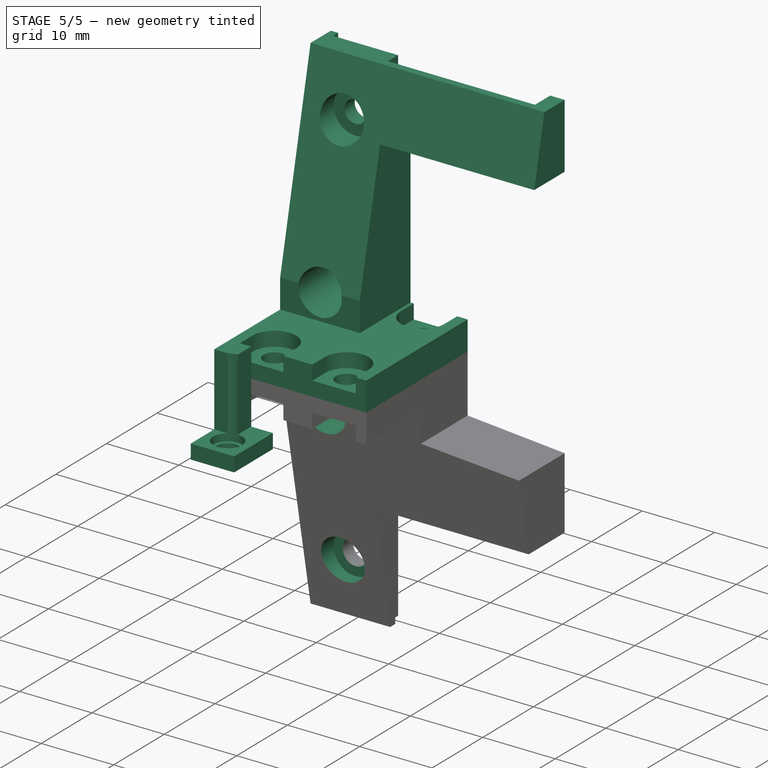
[diagram: stage 5 of 5 — iso view after this stage's code; geometry added in this stage tinted green]
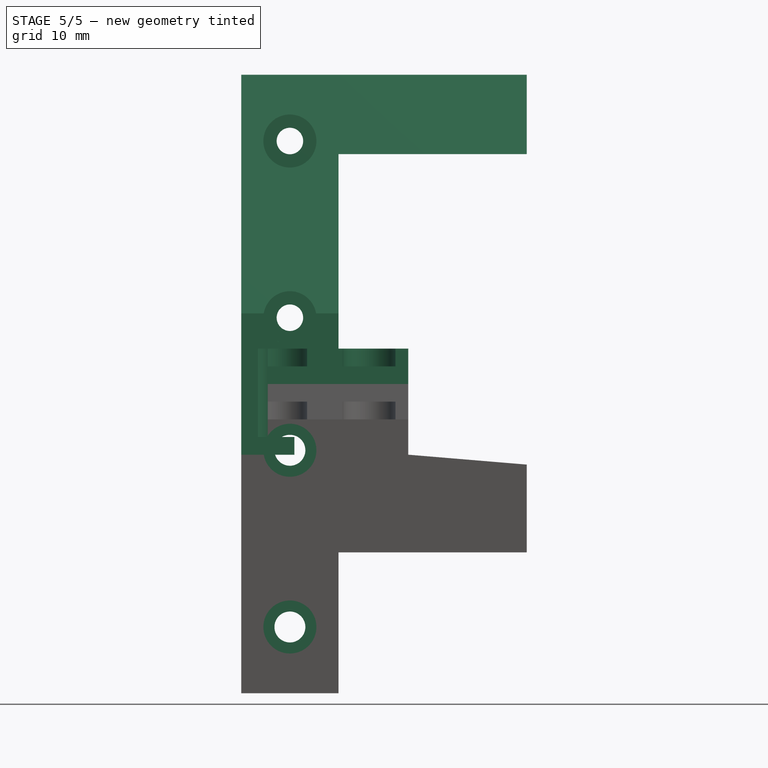
[diagram: stage 5 of 5 — front view after this stage's code; geometry added in this stage tinted green]
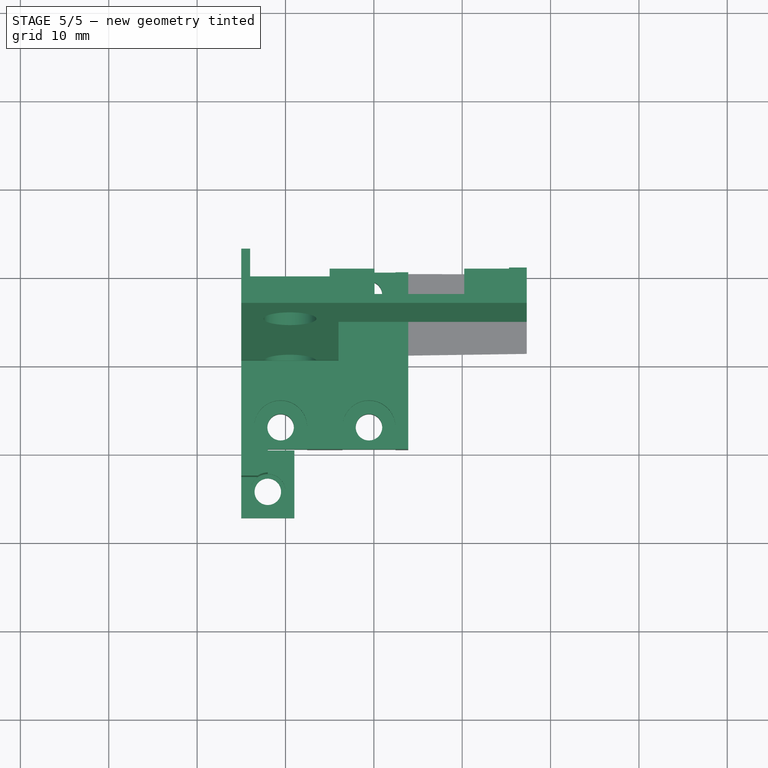
[diagram: stage 5 of 5 — top view after this stage's code; geometry added in this stage tinted green]
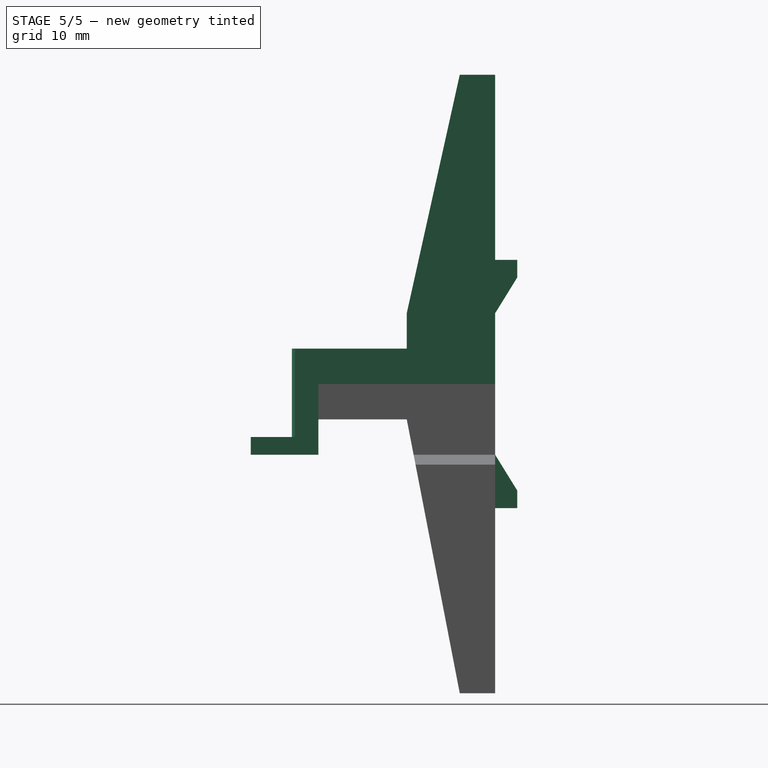
[diagram: stage 5 of 5 — right view after this stage's code; geometry added in this stage tinted green]
FEATURE [Sketcher::SketchObject] Sketch020
  ExternalGeometry = -> [Pocket005]
  FullyConstrained = true
  MapMode = 5
  Placement = pos=(0,0,16) rot=(0,0,1;0rad)
  Support = -> [Pocket005]
  expr: Constraints[37] = <<Datasheet>>#<<mgn9c>>.Dim_D / 2
  expr: Constraints[38] = <<Datasheet>>#<<mgn9c>>.Dim_D / 2
  expr: Constraints[39] = <<Datasheet>>#<<mgn9c>>.Dim_D / 2
  sketch-geometry (15):
    g0: ArcOfCircle CenterX=19.45 CenterY=17.5 CenterZ=0 NormalX=0 NormalY=0 NormalZ=1 AngleXU=0 Radius=3 StartAngle=3.14159 EndAngle=6.28318
    g1: ArcOfCircle CenterX=19.45 CenterY=2.5 CenterZ=0 NormalX=0 NormalY=0 NormalZ=1 AngleXU=0 Radius=3 StartAngle=1.6056e-08 EndAngle=3.14159
    g2: ArcOfCircle CenterX=9.45 CenterY=2.5 CenterZ=0 NormalX=0 NormalY=0 NormalZ=1 AngleXU=0 Radius=3 StartAngle=6.28319 EndAngle=9.42478
    g3: LineSegment StartX=6.45 StartY=0 StartZ=0 EndX=12.45 EndY=0 EndZ=0
    g4: LineSegment StartX=12.45 StartY=0 StartZ=0 EndX=12.45 EndY=2.5 EndZ=0
    g5: LineSegment StartX=12.45 StartY=2.5 StartZ=0 EndX=6.45 EndY=2.5 EndZ=0
    g6: LineSegment StartX=6.45 StartY=2.5 StartZ=0 EndX=6.45 EndY=0 EndZ=0
    g7: LineSegment StartX=16.45 StartY=2.5 StartZ=0 EndX=22.45 EndY=2.5 EndZ=0
    g8: LineSegment StartX=22.45 StartY=2.5 StartZ=0 EndX=22.45 EndY=0 EndZ=0
    g9: LineSegment StartX=22.45 StartY=0 StartZ=0 EndX=16.45 EndY=0 EndZ=0
    g10: LineSegment StartX=16.45 StartY=0 StartZ=0 EndX=16.45 EndY=2.5 EndZ=0
    g11: LineSegment StartX=16.45 StartY=17.5 StartZ=0 EndX=22.45 EndY=17.5 EndZ=0
    g12: LineSegment StartX=22.45 StartY=17.5 StartZ=0 EndX=22.45 EndY=20 EndZ=0
    g13: LineSegment StartX=22.45 StartY=20 StartZ=0 EndX=16.45 EndY=20 EndZ=0
    g14: LineSegment StartX=16.45 StartY=20 StartZ=0 EndX=16.45 EndY=17.5 EndZ=0
  constraints (42):
    c: Coincident(g0,g-5)
    c: Coincident(g1,g-3)
    c: Coincident(g2,g-4)
    c: Coincident(g3,g4)
    c: Coincident(g4,g5)
    c: Coincident(g5,g6)
    c: Coincident(g6,g3)
    c: Horizontal(g3)
    c: Horizontal(g5)
    c: Vertical(g4)
    c: Vertical(g6)
    c: Coincident(g4,g2)
    c: Coincident(g2,g5)
    c: Tangent(g2,g6)
    c: Coincident(g7,g8)
    c: Coincident(g8,g9)
    c: Coincident(g9,g10)
    c: Coincident(g10,g7)
    c: Horizontal(g7)
    c: Horizontal(g9)
    c: Vertical(g8)
    c: Vertical(g10)
    c: Coincident(g7,g1)
    c: Coincident(g1,g7)
    c: Tangent(g1,g8)
    c: Coincident(g11,g12)
    c: Coincident(g12,g13)
    c: Coincident(g13,g14)
    c: Coincident(g14,g11)
    c: Horizontal(g11)
    c: Horizontal(g13)
    c: Vertical(g12)
    c: Vertical(g14)
    c: Coincident(g11,g0)
    c: PointOnObject(g12,g-6)
    c: Coincident(g11,g0)
    c: Tangent(g0,g12)
    c: Radius(g0) = 3
    c: Radius(g1) = 3
    c: Radius(g2) = 3
    c: PointOnObject(g3,g-1)
    c: PointOnObject(g9,g-1)
FEATURE [PartDesign::Pocket] Pocket014
  BaseFeature = -> Pocket005
  Direction = (0,0,-1)
  Length = 6
  Length2 = 5
  Profile = -> Sketch020
  ReferenceAxis = -> Sketch020 [N_Axis]
  Type = 0
FEATURE [Sketcher::SketchObject] Sketch021
  ExternalGeometry = -> [Pocket014]
  FullyConstrained = true
  MapMode = 5
  Placement = pos=(0,0,16) rot=(0,0,1;0rad)
  Support = -> [Pocket014]
  sketch-geometry (11):
    g0: LineSegment StartX=5 StartY=0 StartZ=0 EndX=23.9 EndY=0 EndZ=0
    g1: LineSegment StartX=23.9 StartY=0 StartZ=0 EndX=23.9 EndY=10 EndZ=0
    g2: LineSegment StartX=5 StartY=10 StartZ=0 EndX=5 EndY=0 EndZ=0
    g3: LineSegment StartX=23.9 StartY=10 StartZ=0 EndX=23.9 EndY=20 EndZ=0
    g4: LineSegment StartX=23.9 StartY=20 StartZ=0 EndX=16 EndY=20 EndZ=0
    g5: LineSegment StartX=16 StartY=20 StartZ=0 EndX=16 EndY=10 EndZ=0
    g6: LineSegment StartX=5 StartY=10 StartZ=0 EndX=16 EndY=10 EndZ=0
    g7: LineSegment StartX=5 StartY=-3 StartZ=0 EndX=8 EndY=-3 EndZ=0
    g8: LineSegment StartX=8 StartY=-3 StartZ=0 EndX=8 EndY=0 EndZ=0
    g9: LineSegment StartX=5 StartY=0 StartZ=0 EndX=5 EndY=-3 EndZ=0
    g10: LineSegment StartX=8 StartY=0 StartZ=0 EndX=23.9 EndY=0 EndZ=0
  constraints (26):
    c: Coincident(g0,g1)
    c: Coincident(g2,g0)
    c: Horizontal(g0)
    c: Vertical(g1)
    c: Vertical(g2)
    c: Coincident(g0,g-5)
    c: Coincident(g1,g-4)
    c: Coincident(g3,g4)
    c: Coincident(g4,g5)
    c: Horizontal(g4)
    c: Vertical(g5)
    c: Coincident(g3,g-3)
    c: Coincident(g1,g3)
    c: Coincident(g6,g2)
    c: Coincident(g6,g5)
    c: Horizontal(g6)
    c: Coincident(g5,g-4)
    c: Coincident(g7,g8)
    c: Coincident(g9,g7)
    c: Horizontal(g7)
    c: Vertical(g8)
    c: Coincident(g7,g-6)
    c: Coincident(g8,g-7)
    c: Coincident(g9,g2)
    c: Coincident(g10,g8)
    c: Coincident(g10,g1)
FEATURE [PartDesign::Pocket] Pocket015
  BaseFeature = -> Pocket014
  Direction = (0,0,-1)
  Length = 4
  Length2 = 5
  Profile = -> Sketch021
  ReferenceAxis = -> Sketch021 [N_Axis]
  Type = 0
FEATURE [Sketcher::SketchObject] Sketch022
  ExternalGeometry = -> [Pocket013]
  FullyConstrained = true
  MapMode = 5
  Placement = pos=(0,0,0) rot=(1,0,0;3.14159rad)
  Support = -> [Pocket013]
  sketch-geometry (4):
    g0: LineSegment StartX=5 StartY=-10 StartZ=0 EndX=23.9 EndY=-10 EndZ=0
    g1: LineSegment StartX=23.9 StartY=-10 StartZ=0 EndX=23.9 EndY=0 EndZ=0
    g2: LineSegment StartX=23.9 StartY=0 StartZ=0 EndX=5 EndY=0 EndZ=0
    g3: LineSegment StartX=5 StartY=0 StartZ=0 EndX=5 EndY=-10 EndZ=0
  constraints (10):
    c: Coincident(g0,g1)
    c: Coincident(g1,g2)
    c: Coincident(g2,g3)
    c: Coincident(g3,g0)
    c: Horizontal(g0)
    c: Horizontal(g2)
    c: Vertical(g1)
    c: Vertical(g3)
    c: Coincident(g0,g-3)
    c: Coincident(g1,g-4)
FEATURE [Sketcher::SketchObject] Sketch023
  AttachmentOffset = pos=(0,0,-10) rot=(0,0,1;0rad)
  ExternalGeometry = -> [Pocket015]
  FullyConstrained = true
  MapMode = 5
  Placement = pos=(0,9,-3.6e-15) rot=(0,0.707107,0.707107;3.14159rad)
  Support = -> [Pocket015]
  expr: Constraints[2] = <<Datasheet>>#<<mgn9c>>.Dim_D
  expr: Constraints[3] = <<Datasheet>>#<<mgn9c>>.Dim_D
  sketch-geometry (2):
    g0: Circle CenterX=-10.5 CenterY=15.5 CenterZ=0 NormalX=0 NormalY=0 NormalZ=1 AngleXU=0 Radius=3
    g1: Circle CenterX=-10.5 CenterY=35.5 CenterZ=0 NormalX=0 NormalY=0 NormalZ=1 AngleXU=0 Radius=3
  constraints (4):
    c: Coincident(g0,g-6)
    c: Coincident(g1,g-4)
    c: Diameter(g1) = 6
    c: Diameter(g0) = 6
FEATURE [PartDesign::Pocket] Pocket017
  BaseFeature = -> Pocket015
  Direction = (0,-1,2e-16)
  Length = 8
  Length2 = 5
  Profile = -> Sketch023
  ReferenceAxis = -> Sketch023 [N_Axis]
  Reversed = true
  Type = 0
  expr: Length = 10 - 2
FEATURE [Sketcher::SketchObject] Sketch025
  AttachmentOffset = pos=(0,0,-10) rot=(0,0,1;0rad)
  ExternalGeometry = -> [Pocket018]
  FullyConstrained = true
  MapMode = 5
  Placement = pos=(-1e-16,9,-2.3e-15) rot=(0,0.707107,0.707107;3.14159rad)
  Support = -> [Pocket018]
  expr: Constraints[2] = <<Datasheet>>#<<mgn9c>>.Dim_D
  expr: Constraints[3] = <<Datasheet>>#<<mgn9c>>.Dim_D
  sketch-geometry (2):
    g0: Circle CenterX=-10.5 CenterY=0.5 CenterZ=0 NormalX=0 NormalY=0 NormalZ=1 AngleXU=0 Radius=3
    g1: Circle CenterX=-10.5 CenterY=-19.5 CenterZ=0 NormalX=0 NormalY=0 NormalZ=1 AngleXU=0 Radius=3
  constraints (4):
    c: Coincident(g0,g-3)
    c: Coincident(g1,g-4)
    c: Diameter(g1) = 6
    c: Diameter(g0) = 6
FEATURE [PartDesign::Pocket] Pocket019
  BaseFeature = -> Pocket018
  Direction = (0,-1,2e-16)
  Length = 8
  Length2 = 5
  Profile = -> Sketch025
  ReferenceAxis = -> Sketch025 [N_Axis]
  Reversed = true
  Type = 0
  expr: Length = 10 - 2
FEATURE [Sketcher::SketchObject] Sketch026
  ExternalGeometry = -> [Pocket019]
  FullyConstrained = true
  MapMode = 5
  Placement = pos=(5,0,0) rot=(0.57735,-0.57735,-0.57735;2.0944rad)
  Support = -> [Pocket019]
  expr: Constraints[10] = <<Sketch008>>.Constraints.StopperLength
  expr: Constraints[11] = <<Measurements>>.Constraints.SlideStopHeight
  expr: Constraints[13] = <<Sketch009>>.Constraints.StopperTopLength
  expr: Constraints[9] = <<BaseMagnetoPot>>#<<Sketch>>.Constraints.EndStopDistance
  sketch-geometry (7):
    g0: LineSegment StartX=-20 StartY=2.7e-15 StartZ=0 EndX=-22.5 EndY=2.7e-15 EndZ=0
    g1: LineSegment StartX=-22.5 StartY=2.7e-15 StartZ=0 EndX=-22.5 EndY=-6.05 EndZ=0
    g2: LineSegment StartX=-22.5 StartY=-6.05 StartZ=0 EndX=-20 EndY=-6.05 EndZ=0
    g3: LineSegment StartX=-20 StartY=-6.05 StartZ=0 EndX=-20 EndY=2.7e-15 EndZ=0
    g4: GeomPoint X=-22.5 Y=-4.05 Z=0
    g5: LineSegment StartX=-22.5 StartY=-6.05 StartZ=0 EndX=-22.5 EndY=-4.05 EndZ=0
    g6: LineSegment StartX=-20 StartY=2.7e-15 StartZ=0 EndX=-22.5 EndY=-4.05 EndZ=0
  constraints (18):
    c: Coincident(g0,g1)
    c: Coincident(g1,g2)
    c: Coincident(g2,g3)
    c: Coincident(g3,g0)
    c: Horizontal(g0)
    c: Horizontal(g2)
    c: Vertical(g1)
    c: Vertical(g3)
    c: PointOnObject(g0,g-4)
    c: DistanceY(g2,g-3) = 14.05
    c: DistanceY(g3,g3) = 6.05
    c: DistanceX(g2,g2) = 2.5
    c: PointOnObject(g4,g1)
    c: DistanceY(g1,g4) = 2
    c: Coincident(g2,g5)
    c: Coincident(g5,g4)
    c: Coincident(g3,g6)
    c: Coincident(g6,g5)
FEATURE [PartDesign::Pad] Pad007
  BaseFeature = -> Pocket019
  Direction = (-1,0,0)
  Length = 1
  Length2 = 10
  Profile = -> Sketch026
  ReferenceAxis = -> Sketch026 [N_Axis]
  Reversed = true
  Type = 0
  expr: Length = <<Sketch014>>.Constraints.SlideGuideWidth
FEATURE [PartDesign::Body] Body001  label="NormalConnector"
  Group = -> [Binder001,Sketch011,Pad005,Sketch012,Pad006,Sketch014,Sketch016,Sketch017,Pocket009,Pocket010,Pocket011,Pocket012,Sketch018,Sketch019,Pocket013,Sketch022,Pocket016,Sketch024,Pocket018,Sketch025,Pocket019,Sketch026,Pad007]
  Origin = -> Origin001
  Tip = -> Pad007
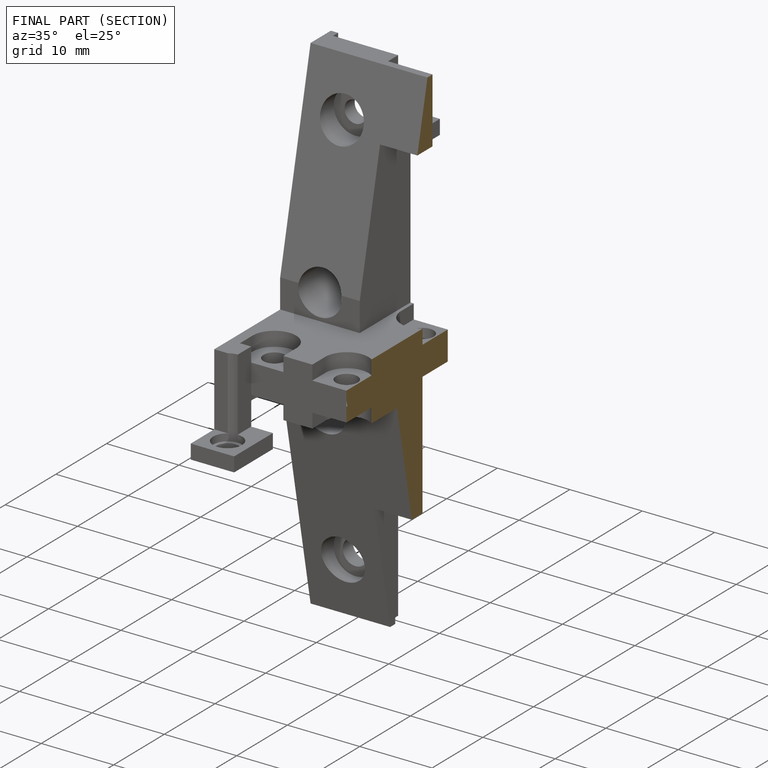
[diagram: finished part — half-section view (interior)]
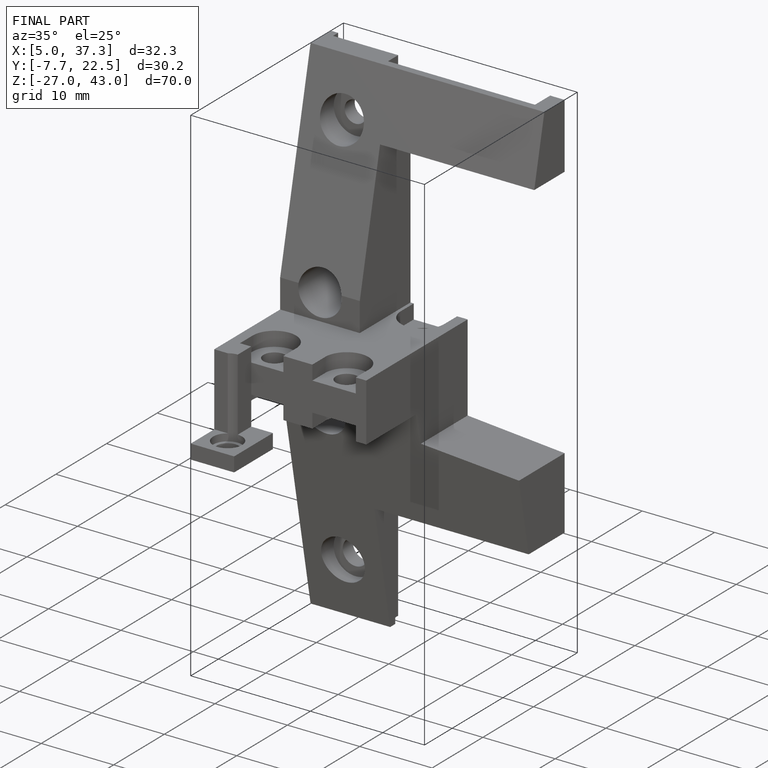
[diagram: finished part — iso view with bounding-box wireframe]
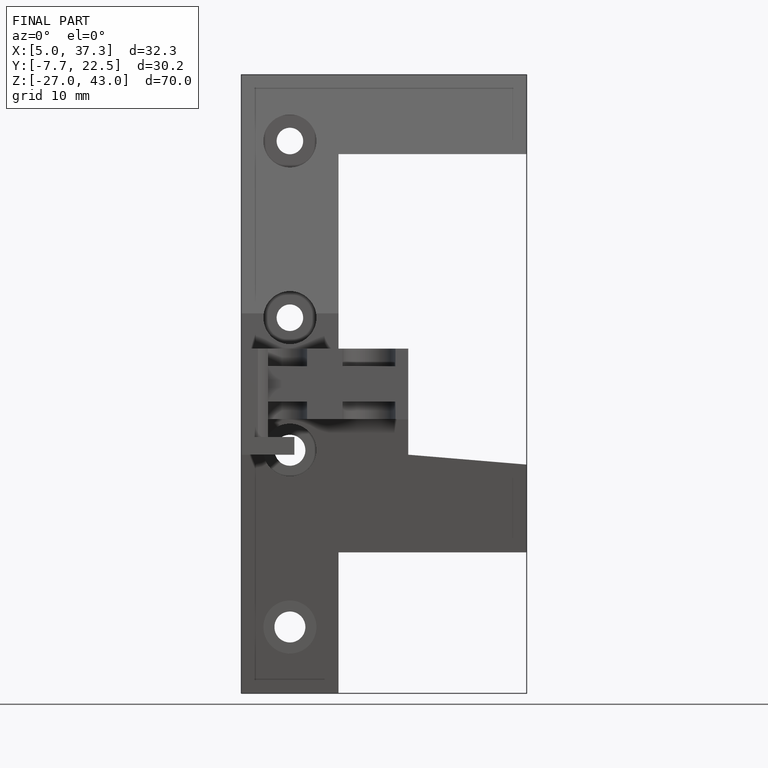
[diagram: finished part — front view with bounding-box wireframe]
